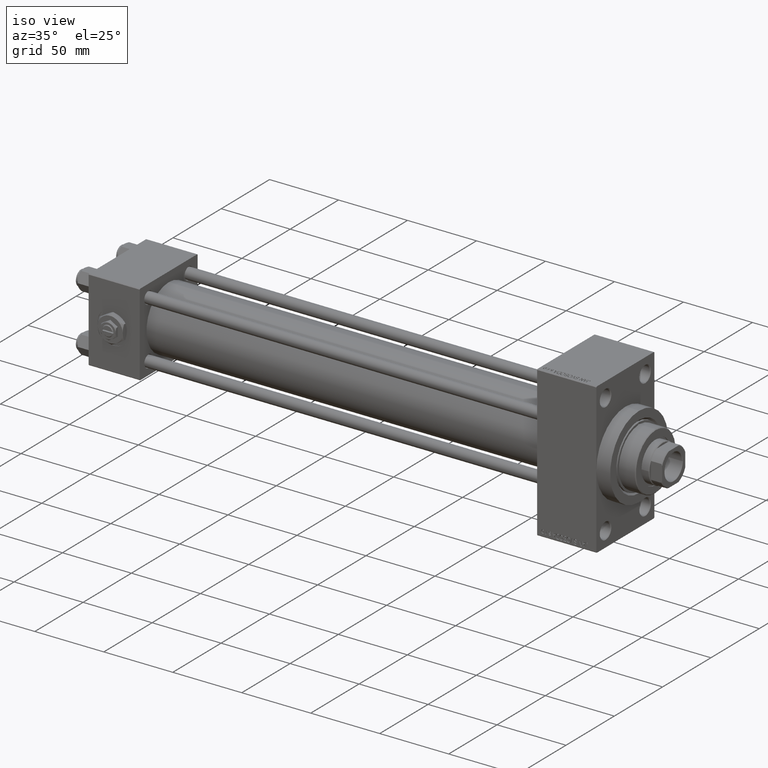
[diagram: clean part render]
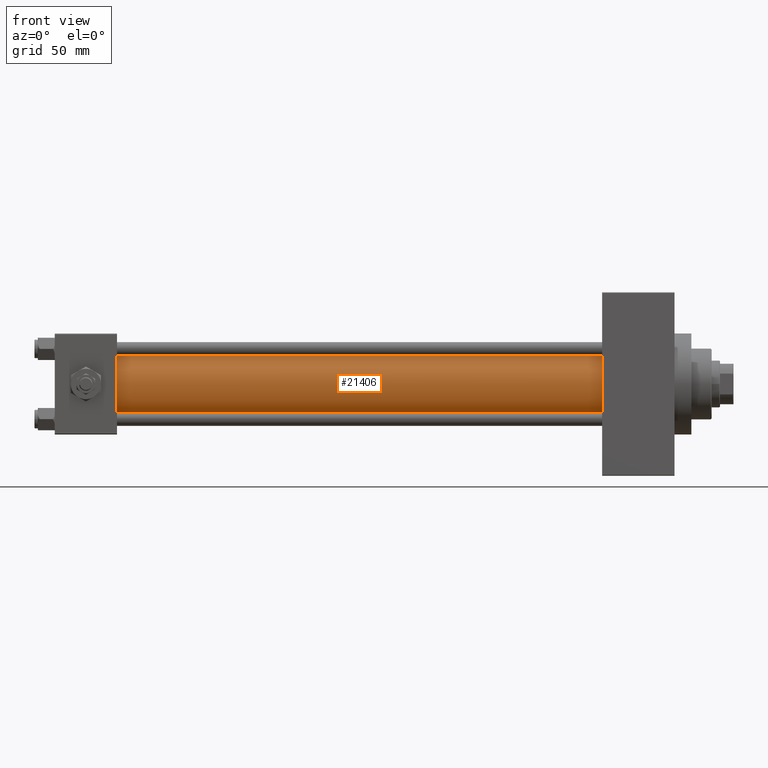
[diagram: tour spotlight — one face highlighted and labeled with its STEP entity id]
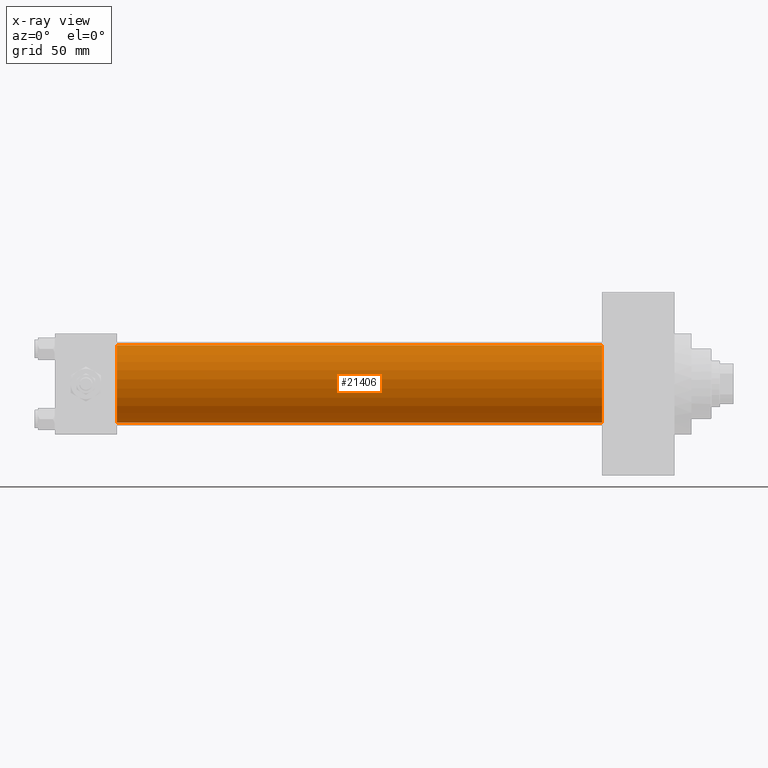
[diagram: x-ray of the same camera — body ghosted, this tour face saturated]
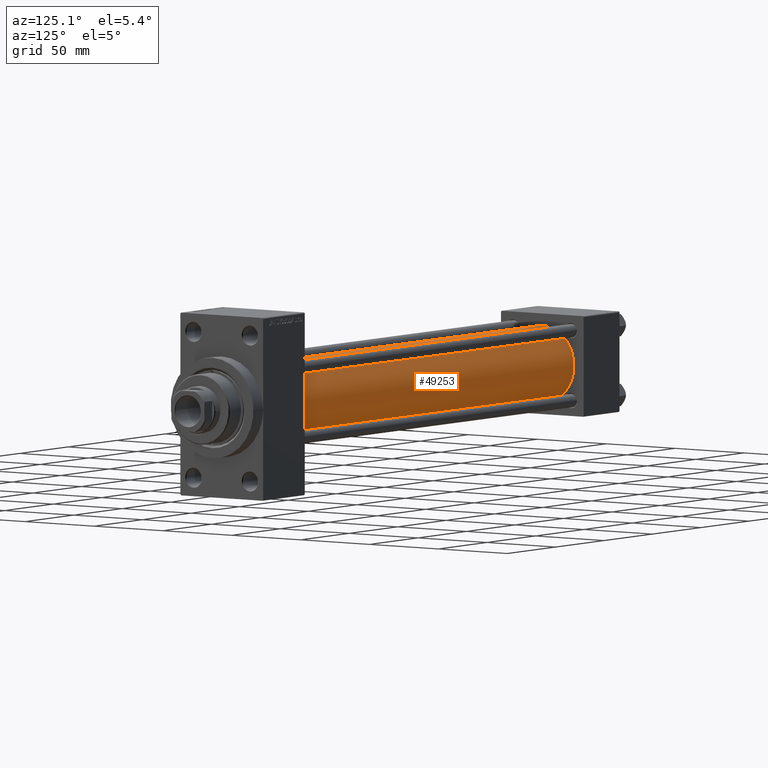
[diagram: tour spotlight — one face highlighted and labeled with its STEP entity id]
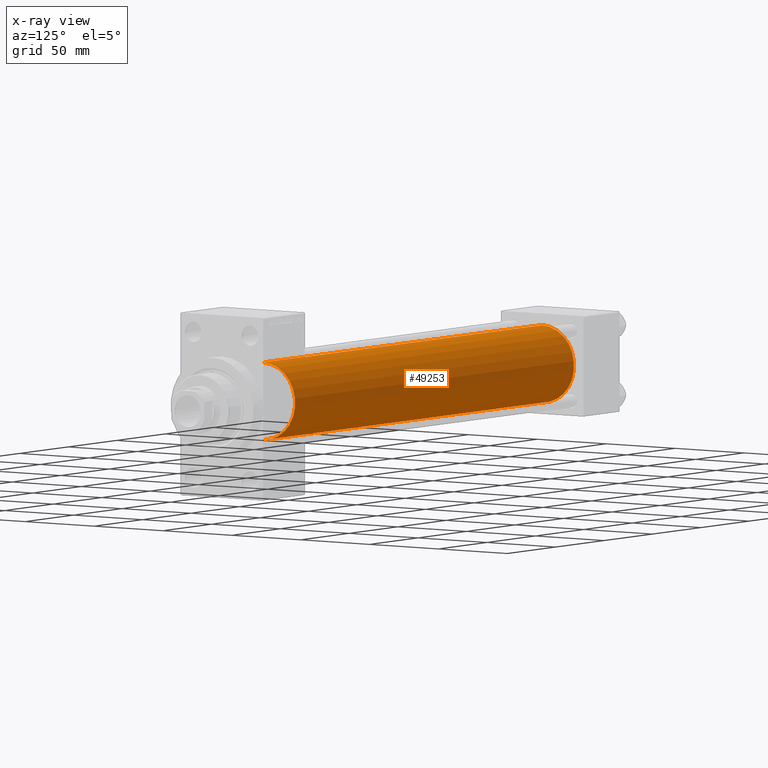
[diagram: x-ray of the same camera — body ghosted, this tour face saturated]
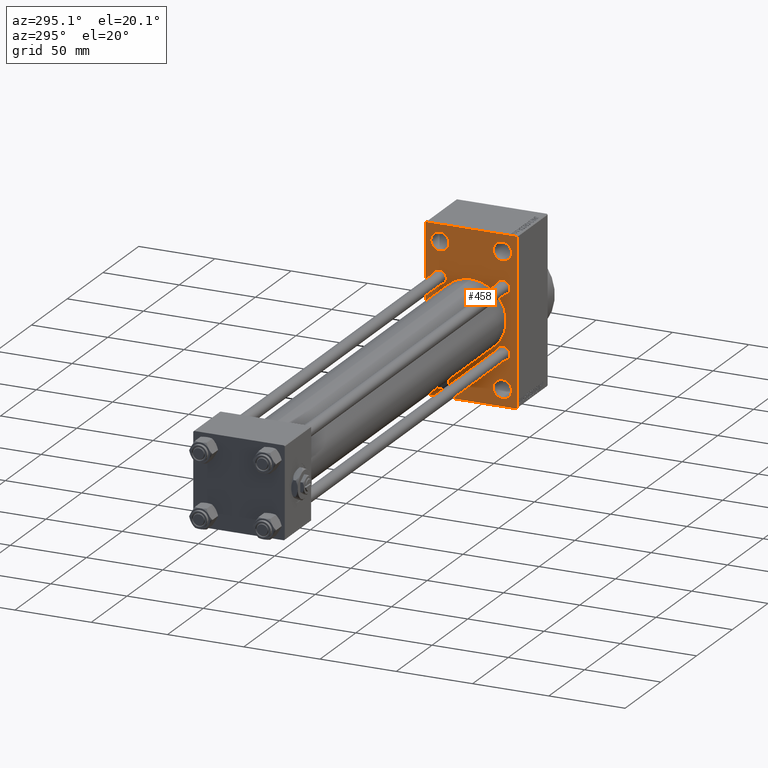
[diagram: tour spotlight — one face highlighted and labeled with its STEP entity id]
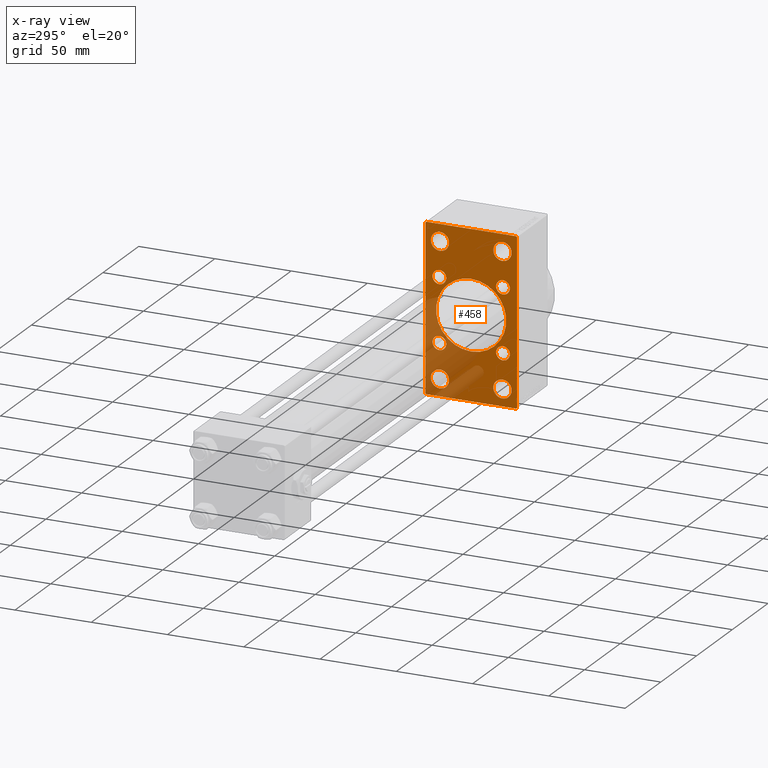
[diagram: x-ray of the same camera — body ghosted, this tour face saturated]
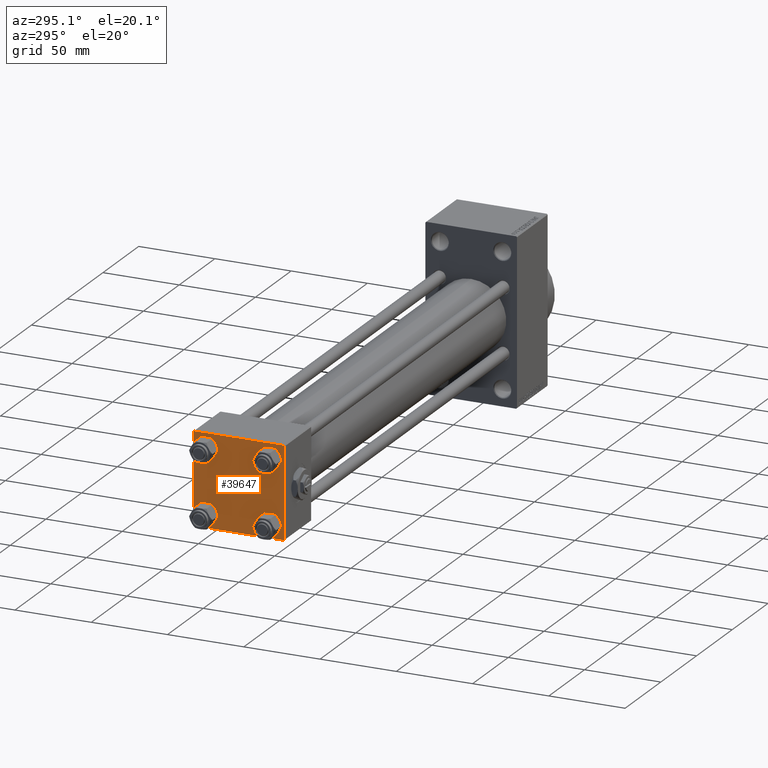
[diagram: tour spotlight — one face highlighted and labeled with its STEP entity id]
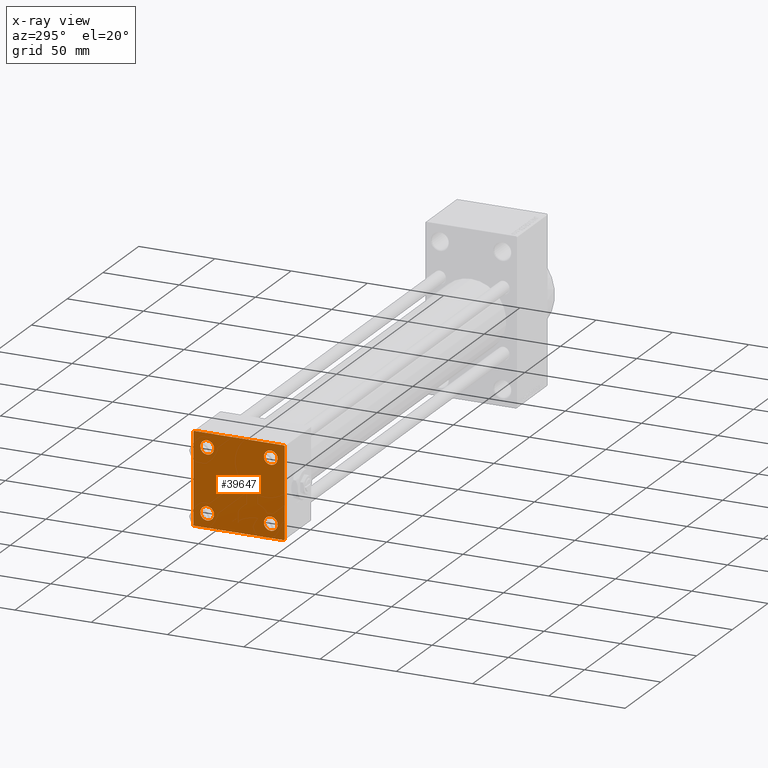
[diagram: x-ray of the same camera — body ghosted, this tour face saturated]
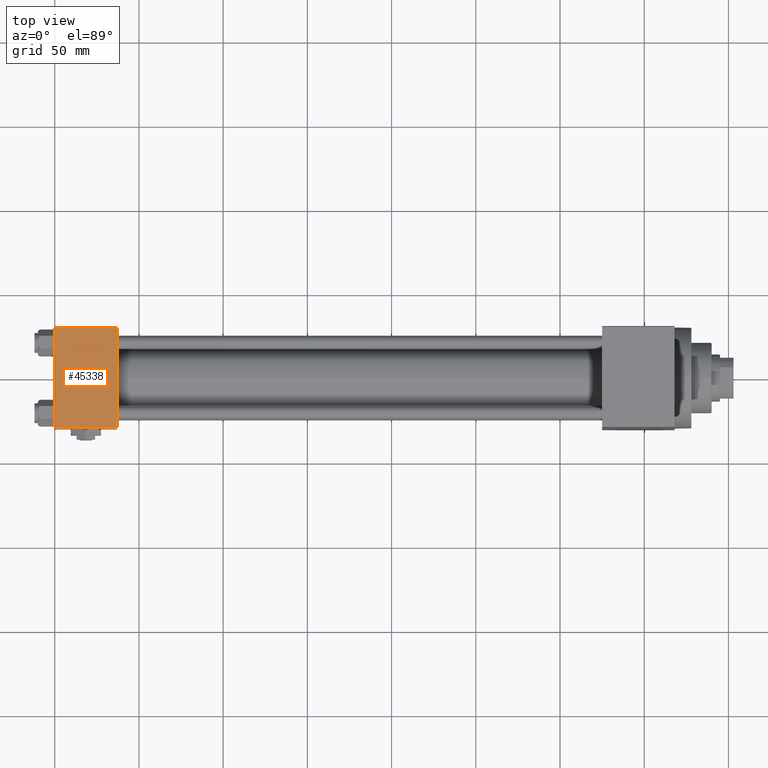
[diagram: tour spotlight — one face highlighted and labeled with its STEP entity id]
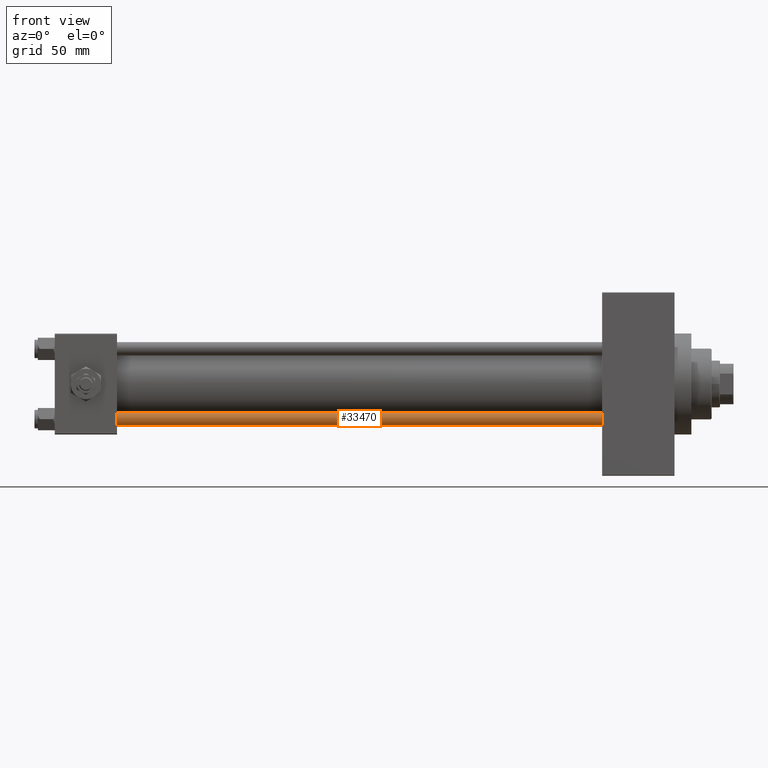
[diagram: tour spotlight — one face highlighted and labeled with its STEP entity id]
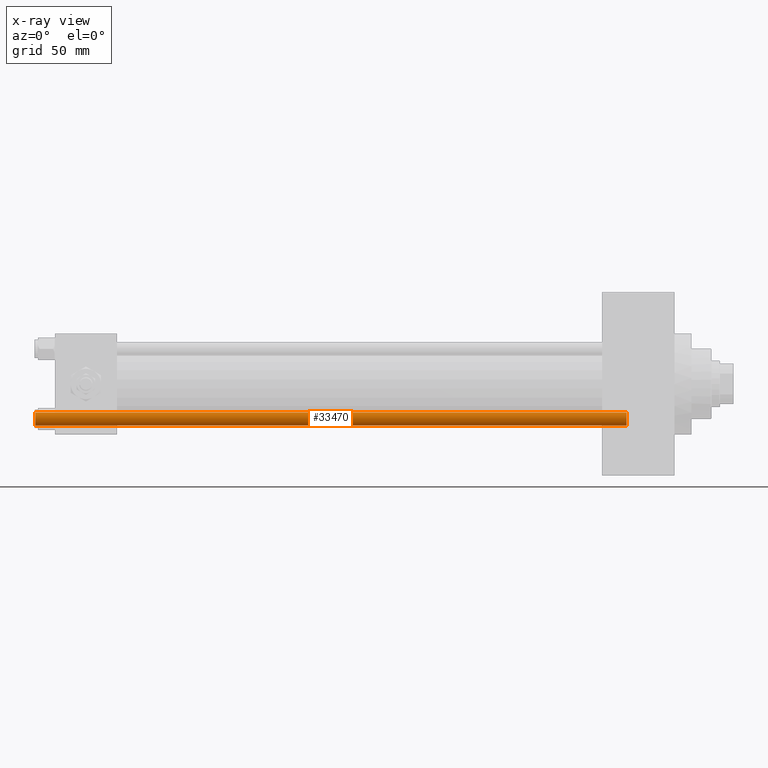
[diagram: x-ray of the same camera — body ghosted, this tour face saturated]
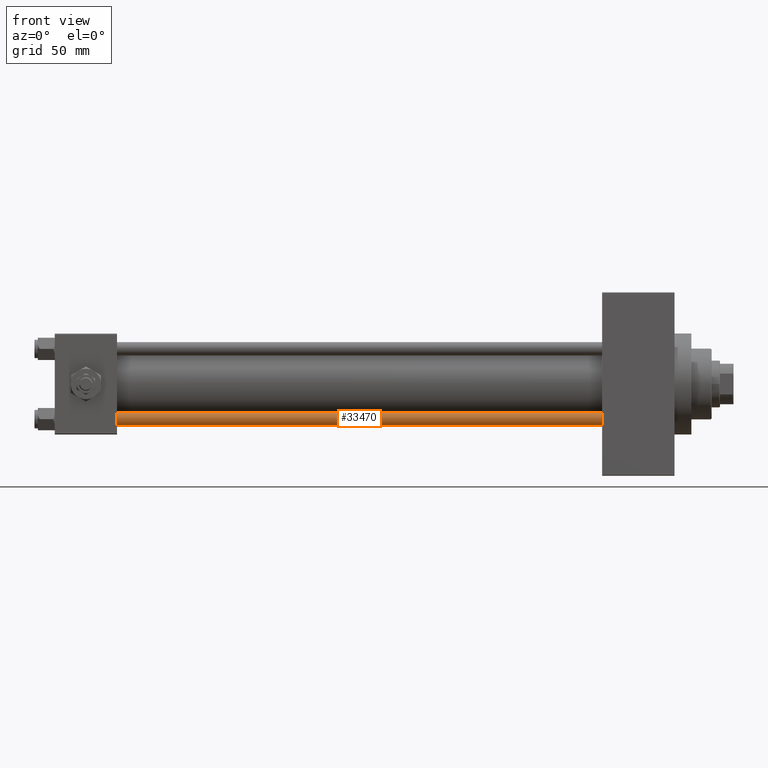
[diagram: tour spotlight — one face highlighted and labeled with its STEP entity id]
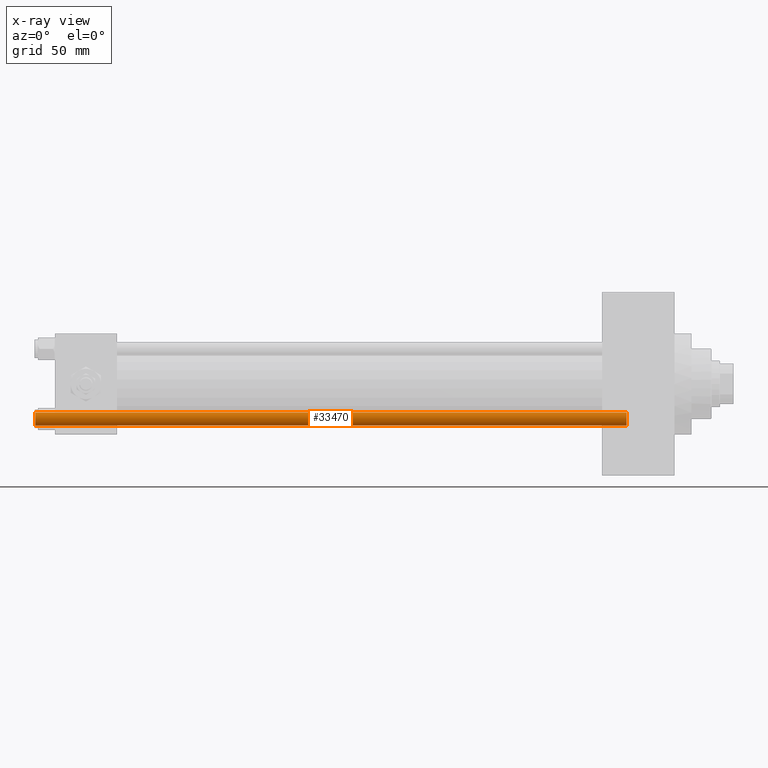
[diagram: x-ray of the same camera — body ghosted, this tour face saturated]
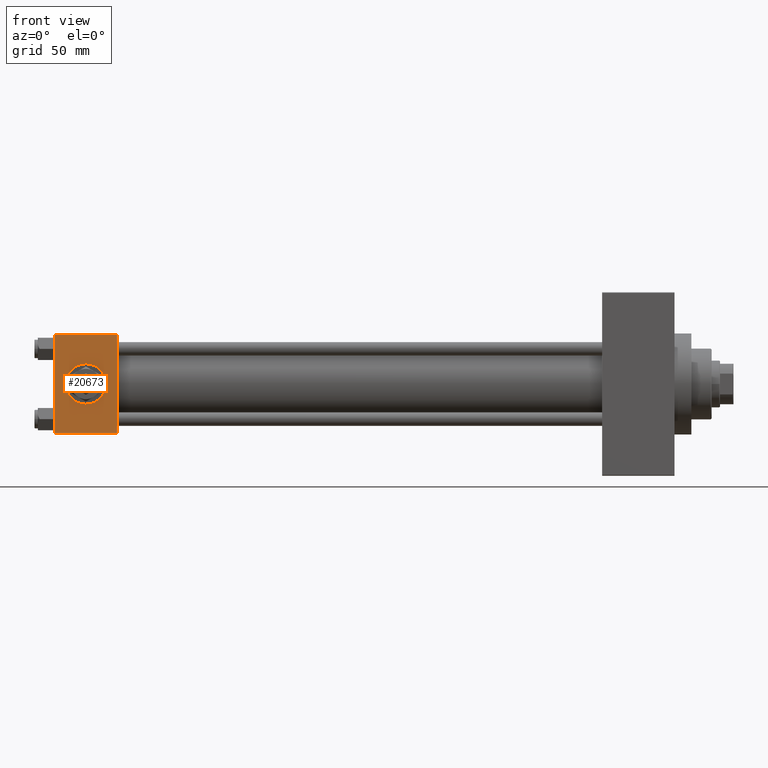
[diagram: tour spotlight — one face highlighted and labeled with its STEP entity id]
A machine part: a face-by-face anatomy tour. The part has 1167 B-rep faces; the first image is the clean iso view, then the 8 largest visible faces are spotlighted one at a time (largest first), each with its STEP entity span.

Face 1 — front view, entity #21406. An x-ray twin of the same camera follows (body ghosted, this face saturated) — the face is partly hidden behind the body. In plain terms, the highlighted cylindrical surface (partial cylindrical patch) has radius 23 mm, axis along (-1, -0, -0).
Definition (entity closure, byte-faithful):
#394 = CARTESIAN_POINT ( 'NONE',  ( 36.99999999999997868, -2.602085213965210642E-15, 23.00000000000000000 ) ) ;
#2114 = CARTESIAN_POINT ( 'NONE',  ( 324.9999999999999432, -2.602085213965210642E-15, 23.00000000000000000 ) ) ;
#2422 = DIRECTION ( 'NONE',  ( 0.000000000000000000, 0.000000000000000000, -1.000000000000000000 ) ) ;
#4711 = VERTEX_POINT ( 'NONE', #32162 ) ;
#6928 = CIRCLE ( 'NONE', #29173, 23.00000000000000000 ) ;
#6993 = EDGE_CURVE ( 'NONE', #32530, #4711, #12199, .T. ) ;
#11099 = DIRECTION ( 'NONE',  ( 0.000000000000000000, 0.000000000000000000, 1.000000000000000000 ) ) ;
#12199 = LINE ( 'NONE', #14960, #46703 ) ;
#12408 = EDGE_LOOP ( 'NONE', ( #31556, #37086, #30551, #24879 ) ) ;
#14421 = CARTESIAN_POINT ( 'NONE',  ( 324.9999999999999432, -2.602085213965210642E-15, 0.000000000000000000 ) ) ;
#14850 = DIRECTION ( 'NONE',  ( 1.000000000000000000, -0.000000000000000000, 0.000000000000000000 ) ) ;
#14960 = CARTESIAN_POINT ( 'NONE',  ( 324.9999999999999432, 2.146024240737016609E-16, -23.00000000000000000 ) ) ;
#15279 = CARTESIAN_POINT ( 'NONE',  ( 324.9999999999999432, -2.602085213965210642E-15, 23.00000000000000000 ) ) ;
#16596 = VERTEX_POINT ( 'NONE', #2114 ) ;
#20736 = EDGE_CURVE ( 'NONE', #16596, #32530, #27774, .T. ) ;
#21406 = ADVANCED_FACE ( 'NONE', ( #21641 ), #40831, .T. ) ;
#21426 = AXIS2_PLACEMENT_3D ( 'NONE', #14421, #37343, #30107 ) ;
#21641 = FACE_OUTER_BOUND ( 'NONE', #12408, .T. ) ;
#22507 = DIRECTION ( 'NONE',  ( -1.000000000000000000, -0.000000000000000000, -0.000000000000000000 ) ) ;
#23834 = AXIS2_PLACEMENT_3D ( 'NONE', #47752, #40022, #2422 ) ;
#24879 = ORIENTED_EDGE ( 'NONE', *, *, #41986, .T. ) ;
#27774 = CIRCLE ( 'NONE', #23834, 23.00000000000000000 ) ;
#29173 = AXIS2_PLACEMENT_3D ( 'NONE', #40771, #14850, #11099 ) ;
#29634 = VECTOR ( 'NONE', #22507, 1000.000000000000000 ) ;
#30107 = DIRECTION ( 'NONE',  ( 0.000000000000000000, 0.000000000000000000, 1.000000000000000000 ) ) ;
#30551 = ORIENTED_EDGE ( 'NONE', *, *, #47464, .T. ) ;
#31556 = ORIENTED_EDGE ( 'NONE', *, *, #6993, .F. ) ;
#32162 = CARTESIAN_POINT ( 'NONE',  ( 36.99999999999997868, 2.146024240737016609E-16, -23.00000000000000000 ) ) ;
#32530 = VERTEX_POINT ( 'NONE', #32934 ) ;
#32934 = CARTESIAN_POINT ( 'NONE',  ( 324.9999999999999432, 2.146024240737016609E-16, -23.00000000000000000 ) ) ;
#33961 = LINE ( 'NONE', #15279, #29634 ) ;
#37086 = ORIENTED_EDGE ( 'NONE', *, *, #20736, .F. ) ;
#37343 = DIRECTION ( 'NONE',  ( -1.000000000000000000, -0.000000000000000000, -0.000000000000000000 ) ) ;
#40022 = DIRECTION ( 'NONE',  ( 1.000000000000000000, 0.000000000000000000, 0.000000000000000000 ) ) ;
#40771 = CARTESIAN_POINT ( 'NONE',  ( 36.99999999999997868, -2.602085213965210642E-15, 0.000000000000000000 ) ) ;
#40831 = CYLINDRICAL_SURFACE ( 'NONE', #21426, 23.00000000000000000 ) ;
#41145 = VERTEX_POINT ( 'NONE', #394 ) ;
#41986 = EDGE_CURVE ( 'NONE', #41145, #4711, #6928, .T. ) ;
#42354 = DIRECTION ( 'NONE',  ( -1.000000000000000000, -0.000000000000000000, -0.000000000000000000 ) ) ;
#46703 = VECTOR ( 'NONE', #42354, 1000.000000000000000 ) ;
#47464 = EDGE_CURVE ( 'NONE', #16596, #41145, #33961, .T. ) ;
#47752 = CARTESIAN_POINT ( 'NONE',  ( 324.9999999999999432, -2.602085213965210642E-15, 0.000000000000000000 ) ) ;

Face 2 — auxiliary view, entity #49253. An x-ray twin of the same camera follows (body ghosted, this face saturated) — the face is partly hidden behind the body. In plain terms, the highlighted cylindrical surface (partial cylindrical patch) has radius 23 mm, axis along (-1, -0, -0).
Definition (entity closure, byte-faithful):
#300 = CYLINDRICAL_SURFACE ( 'NONE', #14589, 23.00000000000000000 ) ;
#394 = CARTESIAN_POINT ( 'NONE',  ( 36.99999999999997868, -2.602085213965210642E-15, 23.00000000000000000 ) ) ;
#1866 = DIRECTION ( 'NONE',  ( 1.000000000000000000, 0.000000000000000000, 0.000000000000000000 ) ) ;
#2114 = CARTESIAN_POINT ( 'NONE',  ( 324.9999999999999432, -2.602085213965210642E-15, 23.00000000000000000 ) ) ;
#3796 = AXIS2_PLACEMENT_3D ( 'NONE', #20022, #38465, #35210 ) ;
#4048 = CIRCLE ( 'NONE', #38941, 23.00000000000000000 ) ;
#4711 = VERTEX_POINT ( 'NONE', #32162 ) ;
#5982 = ORIENTED_EDGE ( 'NONE', *, *, #6993, .T. ) ;
#6792 = DIRECTION ( 'NONE',  ( -1.000000000000000000, -0.000000000000000000, -0.000000000000000000 ) ) ;
#6993 = EDGE_CURVE ( 'NONE', #32530, #4711, #12199, .T. ) ;
#8556 = EDGE_CURVE ( 'NONE', #4711, #41145, #21280, .T. ) ;
#9807 = CARTESIAN_POINT ( 'NONE',  ( 324.9999999999999432, -2.602085213965210642E-15, 0.000000000000000000 ) ) ;
#12199 = LINE ( 'NONE', #14960, #46703 ) ;
#14589 = AXIS2_PLACEMENT_3D ( 'NONE', #44902, #6792, #40918 ) ;
#14960 = CARTESIAN_POINT ( 'NONE',  ( 324.9999999999999432, 2.146024240737016609E-16, -23.00000000000000000 ) ) ;
#15254 = EDGE_LOOP ( 'NONE', ( #41582, #5982, #33764, #46158 ) ) ;
#15279 = CARTESIAN_POINT ( 'NONE',  ( 324.9999999999999432, -2.602085213965210642E-15, 23.00000000000000000 ) ) ;
#16592 = EDGE_CURVE ( 'NONE', #32530, #16596, #4048, .T. ) ;
#16596 = VERTEX_POINT ( 'NONE', #2114 ) ;
#20022 = CARTESIAN_POINT ( 'NONE',  ( 36.99999999999997868, -2.602085213965210642E-15, 0.000000000000000000 ) ) ;
#21280 = CIRCLE ( 'NONE', #3796, 23.00000000000000000 ) ;
#22507 = DIRECTION ( 'NONE',  ( -1.000000000000000000, -0.000000000000000000, -0.000000000000000000 ) ) ;
#28013 = DIRECTION ( 'NONE',  ( 0.000000000000000000, 0.000000000000000000, -1.000000000000000000 ) ) ;
#29634 = VECTOR ( 'NONE', #22507, 1000.000000000000000 ) ;
#30194 = FACE_OUTER_BOUND ( 'NONE', #15254, .T. ) ;
#32162 = CARTESIAN_POINT ( 'NONE',  ( 36.99999999999997868, 2.146024240737016609E-16, -23.00000000000000000 ) ) ;
#32530 = VERTEX_POINT ( 'NONE', #32934 ) ;
#32934 = CARTESIAN_POINT ( 'NONE',  ( 324.9999999999999432, 2.146024240737016609E-16, -23.00000000000000000 ) ) ;
#33764 = ORIENTED_EDGE ( 'NONE', *, *, #8556, .T. ) ;
#33961 = LINE ( 'NONE', #15279, #29634 ) ;
#35210 = DIRECTION ( 'NONE',  ( 0.000000000000000000, 0.000000000000000000, 1.000000000000000000 ) ) ;
#38465 = DIRECTION ( 'NONE',  ( 1.000000000000000000, -0.000000000000000000, 0.000000000000000000 ) ) ;
#38941 = AXIS2_PLACEMENT_3D ( 'NONE', #9807, #1866, #28013 ) ;
#40918 = DIRECTION ( 'NONE',  ( 0.000000000000000000, 0.000000000000000000, 1.000000000000000000 ) ) ;
#41145 = VERTEX_POINT ( 'NONE', #394 ) ;
#41582 = ORIENTED_EDGE ( 'NONE', *, *, #16592, .F. ) ;
#42354 = DIRECTION ( 'NONE',  ( -1.000000000000000000, -0.000000000000000000, -0.000000000000000000 ) ) ;
#44902 = CARTESIAN_POINT ( 'NONE',  ( 324.9999999999999432, -2.602085213965210642E-15, 0.000000000000000000 ) ) ;
#46158 = ORIENTED_EDGE ( 'NONE', *, *, #47464, .F. ) ;
#46703 = VECTOR ( 'NONE', #42354, 1000.000000000000000 ) ;
#47464 = EDGE_CURVE ( 'NONE', #16596, #41145, #33961, .T. ) ;
#49253 = ADVANCED_FACE ( 'NONE', ( #30194 ), #300, .T. ) ;

Face 3 — auxiliary view, entity #458. An x-ray twin of the same camera follows (body ghosted, this face saturated) — the face is partly hidden behind the body. In plain terms, the highlighted planar face has unit normal (-1, 0, 0).
Definition (entity closure, byte-faithful):
#400 = VERTEX_POINT ( 'NONE', #28934 ) ;
#458 = ADVANCED_FACE ( 'NONE', ( #40406, #33172, #2549, #10747, #21457, #2791, #48366, #17729, #41146, #29185 ), #7020, .T. ) ;
#579 = CIRCLE ( 'NONE', #42717, 4.500000000000007105 ) ;
#907 = VERTEX_POINT ( 'NONE', #17307 ) ;
#1000 = CARTESIAN_POINT ( 'NONE',  ( 324.9999999999999432, 20.50000000000000000, -43.50000000000000000 ) ) ;
#1252 = DIRECTION ( 'NONE',  ( -0.000000000000000000, 0.7071067811865058284, 0.7071067811865892061 ) ) ;
#1866 = DIRECTION ( 'NONE',  ( 1.000000000000000000, 0.000000000000000000, 0.000000000000000000 ) ) ;
#2114 = CARTESIAN_POINT ( 'NONE',  ( 324.9999999999999432, -2.602085213965210642E-15, 23.00000000000000000 ) ) ;
#2422 = DIRECTION ( 'NONE',  ( 0.000000000000000000, 0.000000000000000000, -1.000000000000000000 ) ) ;
#2536 = VERTEX_POINT ( 'NONE', #3401 ) ;
#2549 = FACE_BOUND ( 'NONE', #40553, .T. ) ;
#2672 = DIRECTION ( 'NONE',  ( 0.000000000000000000, 0.000000000000000000, 1.000000000000000000 ) ) ;
#2738 = EDGE_CURVE ( 'NONE', #22659, #20424, #9154, .T. ) ;
#2769 = CIRCLE ( 'NONE', #36172, 6.000000000000060396 ) ;
#2791 = FACE_BOUND ( 'NONE', #5594, .T. ) ;
#2939 = EDGE_CURVE ( 'NONE', #3697, #44130, #37898, .T. ) ;
#2980 = LINE ( 'NONE', #18162, #5610 ) ;
#3401 = CARTESIAN_POINT ( 'NONE',  ( 324.9999999999999432, 29.99999999999999645, -54.00000000000004974 ) ) ;
#3681 = DIRECTION ( 'NONE',  ( 1.000000000000000000, -0.000000000000000000, 0.000000000000000000 ) ) ;
#3697 = VERTEX_POINT ( 'NONE', #33444 ) ;
#3732 = ORIENTED_EDGE ( 'NONE', *, *, #33826, .T. ) ;
#4028 = CARTESIAN_POINT ( 'NONE',  ( 324.9999999999999432, -20.84999999999999076, 16.34999999999999787 ) ) ;
#4048 = CIRCLE ( 'NONE', #38941, 23.00000000000000000 ) ;
#4255 = DIRECTION ( 'NONE',  ( 1.000000000000000000, -0.000000000000000000, 0.000000000000000000 ) ) ;
#4831 = EDGE_CURVE ( 'NONE', #19403, #37040, #45828, .T. ) ;
#5504 = CARTESIAN_POINT ( 'NONE',  ( 324.9999999999999432, 20.84999999999999787, -20.85000000000000142 ) ) ;
#5543 = CIRCLE ( 'NONE', #8735, 6.000000000000060396 ) ;
#5558 = LINE ( 'NONE', #9281, #6505 ) ;
#5594 = EDGE_LOOP ( 'NONE', ( #10369, #48827 ) ) ;
#5610 = VECTOR ( 'NONE', #36849, 1000.000000000000000 ) ;
#5830 = AXIS2_PLACEMENT_3D ( 'NONE', #13863, #9392, #2672 ) ;
#6055 = DIRECTION ( 'NONE',  ( 0.000000000000000000, 0.000000000000000000, 1.000000000000000000 ) ) ;
#6067 = CARTESIAN_POINT ( 'NONE',  ( 324.9999999999999432, -29.49999999999994671, 54.50000000000000000 ) ) ;
#6350 = EDGE_CURVE ( 'NONE', #25343, #19961, #6934, .T. ) ;
#6360 = ORIENTED_EDGE ( 'NONE', *, *, #28825, .T. ) ;
#6505 = VECTOR ( 'NONE', #21463, 1000.000000000000000 ) ;
#6547 = DIRECTION ( 'NONE',  ( 1.000000000000000000, -0.000000000000000000, 0.000000000000000000 ) ) ;
#6727 = EDGE_CURVE ( 'NONE', #19094, #16494, #579, .T. ) ;
#6934 = CIRCLE ( 'NONE', #33164, 6.000000000000060396 ) ;
#7020 = PLANE ( 'NONE',  #29900 ) ;
#7230 = ORIENTED_EDGE ( 'NONE', *, *, #27770, .F. ) ;
#7398 = DIRECTION ( 'NONE',  ( 0.000000000000000000, 0.7071067811865081598, -0.7071067811865868746 ) ) ;
#7629 = ORIENTED_EDGE ( 'NONE', *, *, #2738, .T. ) ;
#8120 = CARTESIAN_POINT ( 'NONE',  ( 324.9999999999999432, -20.50000000000000000, 49.50000000000005684 ) ) ;
#8366 = ORIENTED_EDGE ( 'NONE', *, *, #18331, .T. ) ;
#8509 = CARTESIAN_POINT ( 'NONE',  ( 324.9999999999999432, 20.84999999999999787, -20.85000000000000142 ) ) ;
#8735 = AXIS2_PLACEMENT_3D ( 'NONE', #1000, #38354, #16182 ) ;
#8841 = CARTESIAN_POINT ( 'NONE',  ( 324.9999999999999432, -20.84999999999999076, 25.35000000000001208 ) ) ;
#9154 = CIRCLE ( 'NONE', #18024, 4.500000000000007105 ) ;
#9281 = CARTESIAN_POINT ( 'NONE',  ( 324.9999999999999432, 29.99999999999999645, 54.49999999999999289 ) ) ;
#9392 = DIRECTION ( 'NONE',  ( 1.000000000000000000, -0.000000000000000000, 0.000000000000000000 ) ) ;
#9619 = VERTEX_POINT ( 'NONE', #6067 ) ;
#9807 = CARTESIAN_POINT ( 'NONE',  ( 324.9999999999999432, -2.602085213965210642E-15, 0.000000000000000000 ) ) ;
#10021 = CARTESIAN_POINT ( 'NONE',  ( 324.9999999999999432, -20.84999999999999076, -20.85000000000000497 ) ) ;
#10327 = VECTOR ( 'NONE', #7398, 1000.000000000000000 ) ;
#10369 = ORIENTED_EDGE ( 'NONE', *, *, #48338, .T. ) ;
#10747 = FACE_BOUND ( 'NONE', #16040, .T. ) ;
#11347 = VERTEX_POINT ( 'NONE', #15921 ) ;
#11364 = LINE ( 'NONE', #26556, #10327 ) ;
#11692 = CARTESIAN_POINT ( 'NONE',  ( 324.9999999999999432, -20.84999999999999076, 20.85000000000000497 ) ) ;
#11729 = CARTESIAN_POINT ( 'NONE',  ( 324.9999999999999432, 20.50000000000000000, 49.50000000000005684 ) ) ;
#12095 = ORIENTED_EDGE ( 'NONE', *, *, #28037, .T. ) ;
#12185 = DIRECTION ( 'NONE',  ( 0.000000000000000000, 0.000000000000000000, 1.000000000000000000 ) ) ;
#13090 = EDGE_CURVE ( 'NONE', #19961, #25343, #5543, .T. ) ;
#13197 = AXIS2_PLACEMENT_3D ( 'NONE', #5504, #28888, #20922 ) ;
#13608 = EDGE_CURVE ( 'NONE', #18459, #27652, #15889, .T. ) ;
#13706 = CIRCLE ( 'NONE', #20890, 4.500000000000007105 ) ;
#13863 = CARTESIAN_POINT ( 'NONE',  ( 324.9999999999999432, 20.50000000000000000, 43.50000000000000000 ) ) ;
#13913 = EDGE_LOOP ( 'NONE', ( #25158, #42002 ) ) ;
#14710 = EDGE_CURVE ( 'NONE', #31442, #14815, #11364, .T. ) ;
#14775 = AXIS2_PLACEMENT_3D ( 'NONE', #34190, #15259, #23480 ) ;
#14815 = VERTEX_POINT ( 'NONE', #42515 ) ;
#15259 = DIRECTION ( 'NONE',  ( 1.000000000000000000, -0.000000000000000000, 0.000000000000000000 ) ) ;
#15308 = LINE ( 'NONE', #18793, #33589 ) ;
#15731 = ORIENTED_EDGE ( 'NONE', *, *, #6350, .T. ) ;
#15889 = CIRCLE ( 'NONE', #43723, 6.000000000000060396 ) ;
#15921 = CARTESIAN_POINT ( 'NONE',  ( 324.9999999999999432, 20.50000000000000000, 37.49999999999993605 ) ) ;
#16040 = EDGE_LOOP ( 'NONE', ( #35254, #3732 ) ) ;
#16182 = DIRECTION ( 'NONE',  ( 0.000000000000000000, 0.000000000000000000, 1.000000000000000000 ) ) ;
#16187 = ORIENTED_EDGE ( 'NONE', *, *, #49196, .T. ) ;
#16494 = VERTEX_POINT ( 'NONE', #8841 ) ;
#16592 = EDGE_CURVE ( 'NONE', #32530, #16596, #4048, .T. ) ;
#16596 = VERTEX_POINT ( 'NONE', #2114 ) ;
#17307 = CARTESIAN_POINT ( 'NONE',  ( 324.9999999999999432, 29.49999999999999645, -54.49999999999999289 ) ) ;
#17729 = FACE_BOUND ( 'NONE', #29254, .T. ) ;
#17992 = DIRECTION ( 'NONE',  ( 0.000000000000000000, 0.000000000000000000, 1.000000000000000000 ) ) ;
#17996 = DIRECTION ( 'NONE',  ( 1.000000000000000000, -0.000000000000000000, 0.000000000000000000 ) ) ;
#18024 = AXIS2_PLACEMENT_3D ( 'NONE', #10021, #17996, #21473 ) ;
#18162 = CARTESIAN_POINT ( 'NONE',  ( 324.9999999999999432, 29.99999999999999645, 54.49999999999999289 ) ) ;
#18331 = EDGE_CURVE ( 'NONE', #14815, #2536, #2980, .T. ) ;
#18459 = VERTEX_POINT ( 'NONE', #23626 ) ;
#18460 = DIRECTION ( 'NONE',  ( -1.000000000000000000, 0.000000000000000000, -0.000000000000000000 ) ) ;
#18793 = CARTESIAN_POINT ( 'NONE',  ( 324.9999999999999432, -42.00000000000051159, -41.99999999999905498 ) ) ;
#19094 = VERTEX_POINT ( 'NONE', #4028 ) ;
#19403 = VERTEX_POINT ( 'NONE', #28855 ) ;
#19961 = VERTEX_POINT ( 'NONE', #28921 ) ;
#20245 = EDGE_CURVE ( 'NONE', #36750, #30533, #42099, .T. ) ;
#20424 = VERTEX_POINT ( 'NONE', #20896 ) ;
#20608 = CARTESIAN_POINT ( 'NONE',  ( 324.9999999999999432, -30.00000000000000000, 53.99999999999988631 ) ) ;
#20736 = EDGE_CURVE ( 'NONE', #16596, #32530, #27774, .T. ) ;
#20848 = VECTOR ( 'NONE', #34937, 1000.000000000000000 ) ;
#20890 = AXIS2_PLACEMENT_3D ( 'NONE', #11692, #38858, #12185 ) ;
#20896 = CARTESIAN_POINT ( 'NONE',  ( 324.9999999999999432, -20.84999999999999076, -25.35000000000001208 ) ) ;
#20922 = DIRECTION ( 'NONE',  ( 0.000000000000000000, 0.000000000000000000, 1.000000000000000000 ) ) ;
#21457 = FACE_BOUND ( 'NONE', #25232, .T. ) ;
#21463 = DIRECTION ( 'NONE',  ( 0.000000000000000000, -1.000000000000000000, 1.156482317317871478E-16 ) ) ;
#21473 = DIRECTION ( 'NONE',  ( 0.000000000000000000, 0.000000000000000000, 1.000000000000000000 ) ) ;
#21507 = EDGE_LOOP ( 'NONE', ( #23494, #12095, #7230, #24952, #46225, #22160, #8366, #26298 ) ) ;
#21973 = CARTESIAN_POINT ( 'NONE',  ( 324.9999999999999432, -20.50000000000000000, -49.50000000000005684 ) ) ;
#22160 = ORIENTED_EDGE ( 'NONE', *, *, #14710, .T. ) ;
#22422 = CARTESIAN_POINT ( 'NONE',  ( 324.9999999999999432, 20.84999999999999787, 20.85000000000000142 ) ) ;
#22555 = ORIENTED_EDGE ( 'NONE', *, *, #13090, .T. ) ;
#22611 = ORIENTED_EDGE ( 'NONE', *, *, #6727, .T. ) ;
#22659 = VERTEX_POINT ( 'NONE', #49191 ) ;
#23313 = AXIS2_PLACEMENT_3D ( 'NONE', #31114, #41158, #17992 ) ;
#23480 = DIRECTION ( 'NONE',  ( 0.000000000000000000, 0.000000000000000000, 1.000000000000000000 ) ) ;
#23494 = ORIENTED_EDGE ( 'NONE', *, *, #43125, .T. ) ;
#23626 = CARTESIAN_POINT ( 'NONE',  ( 324.9999999999999432, -20.50000000000000000, 37.49999999999993605 ) ) ;
#23834 = AXIS2_PLACEMENT_3D ( 'NONE', #47752, #40022, #2422 ) ;
#24345 = AXIS2_PLACEMENT_3D ( 'NONE', #22422, #37626, #25175 ) ;
#24952 = ORIENTED_EDGE ( 'NONE', *, *, #39849, .T. ) ;
#25158 = ORIENTED_EDGE ( 'NONE', *, *, #43301, .T. ) ;
#25175 = DIRECTION ( 'NONE',  ( 0.000000000000000000, 0.000000000000000000, 1.000000000000000000 ) ) ;
#25232 = EDGE_LOOP ( 'NONE', ( #6360, #22611 ) ) ;
#25343 = VERTEX_POINT ( 'NONE', #39245 ) ;
#26198 = LINE ( 'NONE', #40911, #43544 ) ;
#26298 = ORIENTED_EDGE ( 'NONE', *, *, #41722, .T. ) ;
#26465 = CARTESIAN_POINT ( 'NONE',  ( 324.9999999999999432, -20.84999999999999076, 20.85000000000000497 ) ) ;
#26509 = DIRECTION ( 'NONE',  ( 0.000000000000000000, -0.7071067811865352493, 0.7071067811865597852 ) ) ;
#26556 = CARTESIAN_POINT ( 'NONE',  ( 324.9999999999999432, 42.00000000000166267, 41.99999999999699440 ) ) ;
#26591 = EDGE_LOOP ( 'NONE', ( #44675, #28965 ) ) ;
#26769 = EDGE_CURVE ( 'NONE', #31442, #9619, #5558, .T. ) ;
#26778 = CIRCLE ( 'NONE', #33934, 4.500000000000007105 ) ;
#27536 = VERTEX_POINT ( 'NONE', #38023 ) ;
#27652 = VERTEX_POINT ( 'NONE', #8120 ) ;
#27770 = EDGE_CURVE ( 'NONE', #45156, #400, #38193, .T. ) ;
#27774 = CIRCLE ( 'NONE', #23834, 23.00000000000000000 ) ;
#28013 = DIRECTION ( 'NONE',  ( 0.000000000000000000, 0.000000000000000000, -1.000000000000000000 ) ) ;
#28037 = EDGE_CURVE ( 'NONE', #27536, #400, #15308, .T. ) ;
#28097 = ORIENTED_EDGE ( 'NONE', *, *, #20736, .T. ) ;
#28825 = EDGE_CURVE ( 'NONE', #16494, #19094, #13706, .T. ) ;
#28855 = CARTESIAN_POINT ( 'NONE',  ( 324.9999999999999432, 20.84999999999999787, 16.34999999999999432 ) ) ;
#28888 = DIRECTION ( 'NONE',  ( 1.000000000000000000, -0.000000000000000000, 0.000000000000000000 ) ) ;
#28914 = CIRCLE ( 'NONE', #36892, 6.000000000000060396 ) ;
#28921 = CARTESIAN_POINT ( 'NONE',  ( 324.9999999999999432, 20.50000000000000000, -49.50000000000005684 ) ) ;
#28934 = CARTESIAN_POINT ( 'NONE',  ( 324.9999999999999432, -30.00000000000000000, -53.99999999999998579 ) ) ;
#28965 = ORIENTED_EDGE ( 'NONE', *, *, #20245, .T. ) ;
#29185 = FACE_OUTER_BOUND ( 'NONE', #21507, .T. ) ;
#29254 = EDGE_LOOP ( 'NONE', ( #7629, #35652 ) ) ;
#29900 = AXIS2_PLACEMENT_3D ( 'NONE', #44387, #18460, #32923 ) ;
#30533 = VERTEX_POINT ( 'NONE', #45355 ) ;
#30963 = CARTESIAN_POINT ( 'NONE',  ( 324.9999999999999432, -30.00000000000000000, 54.50000000000000000 ) ) ;
#31114 = CARTESIAN_POINT ( 'NONE',  ( 324.9999999999999432, 20.84999999999999787, 20.85000000000000142 ) ) ;
#31442 = VERTEX_POINT ( 'NONE', #31532 ) ;
#31532 = CARTESIAN_POINT ( 'NONE',  ( 324.9999999999999432, 29.50000000000004974, 54.49999999999999289 ) ) ;
#32530 = VERTEX_POINT ( 'NONE', #32934 ) ;
#32923 = DIRECTION ( 'NONE',  ( -0.000000000000000000, 0.000000000000000000, 1.000000000000000000 ) ) ;
#32934 = CARTESIAN_POINT ( 'NONE',  ( 324.9999999999999432, 2.146024240737016609E-16, -23.00000000000000000 ) ) ;
#33164 = AXIS2_PLACEMENT_3D ( 'NONE', #39773, #47742, #39534 ) ;
#33172 = FACE_BOUND ( 'NONE', #26591, .T. ) ;
#33444 = CARTESIAN_POINT ( 'NONE',  ( 324.9999999999999432, 20.84999999999999787, -25.35000000000000853 ) ) ;
#33589 = VECTOR ( 'NONE', #26509, 1000.000000000000000 ) ;
#33826 = EDGE_CURVE ( 'NONE', #11347, #43150, #47216, .T. ) ;
#33934 = AXIS2_PLACEMENT_3D ( 'NONE', #41533, #3681, #44542 ) ;
#34190 = CARTESIAN_POINT ( 'NONE',  ( 324.9999999999999432, 20.50000000000000000, 43.50000000000000000 ) ) ;
#34687 = VECTOR ( 'NONE', #1252, 1000.000000000000000 ) ;
#34937 = DIRECTION ( 'NONE',  ( 0.000000000000000000, 0.000000000000000000, -1.000000000000000000 ) ) ;
#35254 = ORIENTED_EDGE ( 'NONE', *, *, #38993, .T. ) ;
#35349 = CARTESIAN_POINT ( 'NONE',  ( 324.9999999999999432, -42.00000000000171951, 41.99999999999676703 ) ) ;
#35652 = ORIENTED_EDGE ( 'NONE', *, *, #44641, .T. ) ;
#35931 = DIRECTION ( 'NONE',  ( 1.000000000000000000, -0.000000000000000000, 0.000000000000000000 ) ) ;
#36116 = DIRECTION ( 'NONE',  ( 1.000000000000000000, -0.000000000000000000, 0.000000000000000000 ) ) ;
#36172 = AXIS2_PLACEMENT_3D ( 'NONE', #43425, #39691, #6055 ) ;
#36590 = EDGE_CURVE ( 'NONE', #30533, #36750, #2769, .T. ) ;
#36750 = VERTEX_POINT ( 'NONE', #21973 ) ;
#36844 = LINE ( 'NONE', #43587, #44327 ) ;
#36849 = DIRECTION ( 'NONE',  ( 0.000000000000000000, 0.000000000000000000, -1.000000000000000000 ) ) ;
#36892 = AXIS2_PLACEMENT_3D ( 'NONE', #36933, #6547, #44409 ) ;
#36933 = CARTESIAN_POINT ( 'NONE',  ( 324.9999999999999432, -20.50000000000000000, 43.50000000000000000 ) ) ;
#37040 = VERTEX_POINT ( 'NONE', #40366 ) ;
#37626 = DIRECTION ( 'NONE',  ( 1.000000000000000000, -0.000000000000000000, 0.000000000000000000 ) ) ;
#37898 = CIRCLE ( 'NONE', #41878, 4.500000000000007105 ) ;
#38023 = CARTESIAN_POINT ( 'NONE',  ( 324.9999999999999432, -29.50000000000000355, -54.50000000000000000 ) ) ;
#38193 = LINE ( 'NONE', #30963, #20848 ) ;
#38354 = DIRECTION ( 'NONE',  ( 1.000000000000000000, -0.000000000000000000, 0.000000000000000000 ) ) ;
#38623 = CARTESIAN_POINT ( 'NONE',  ( 324.9999999999999432, -20.50000000000000000, -43.50000000000000000 ) ) ;
#38858 = DIRECTION ( 'NONE',  ( 1.000000000000000000, -0.000000000000000000, 0.000000000000000000 ) ) ;
#38941 = AXIS2_PLACEMENT_3D ( 'NONE', #9807, #1866, #28013 ) ;
#38993 = EDGE_CURVE ( 'NONE', #43150, #11347, #47387, .T. ) ;
#39112 = LINE ( 'NONE', #35349, #34687 ) ;
#39145 = DIRECTION ( 'NONE',  ( 0.000000000000000000, 0.000000000000000000, 1.000000000000000000 ) ) ;
#39245 = CARTESIAN_POINT ( 'NONE',  ( 324.9999999999999432, 20.50000000000000000, -37.49999999999993605 ) ) ;
#39534 = DIRECTION ( 'NONE',  ( 0.000000000000000000, 0.000000000000000000, 1.000000000000000000 ) ) ;
#39563 = CIRCLE ( 'NONE', #13197, 4.500000000000007105 ) ;
#39691 = DIRECTION ( 'NONE',  ( 1.000000000000000000, -0.000000000000000000, 0.000000000000000000 ) ) ;
#39773 = CARTESIAN_POINT ( 'NONE',  ( 324.9999999999999432, 20.50000000000000000, -43.50000000000000000 ) ) ;
#39845 = DIRECTION ( 'NONE',  ( -0.000000000000000000, -0.7071067811865868746, -0.7071067811865081598 ) ) ;
#39849 = EDGE_CURVE ( 'NONE', #45156, #9619, #39112, .T. ) ;
#40022 = DIRECTION ( 'NONE',  ( 1.000000000000000000, 0.000000000000000000, 0.000000000000000000 ) ) ;
#40366 = CARTESIAN_POINT ( 'NONE',  ( 324.9999999999999432, 20.84999999999999787, 25.35000000000000853 ) ) ;
#40406 = FACE_BOUND ( 'NONE', #47276, .T. ) ;
#40553 = EDGE_LOOP ( 'NONE', ( #15731, #22555 ) ) ;
#40839 = CIRCLE ( 'NONE', #23313, 4.500000000000007105 ) ;
#40911 = CARTESIAN_POINT ( 'NONE',  ( 324.9999999999999432, 29.99999999999999645, -54.49999999999999289 ) ) ;
#41146 = FACE_BOUND ( 'NONE', #45835, .T. ) ;
#41158 = DIRECTION ( 'NONE',  ( 1.000000000000000000, -0.000000000000000000, 0.000000000000000000 ) ) ;
#41400 = DIRECTION ( 'NONE',  ( 0.000000000000000000, -1.000000000000000000, -1.156482317317871478E-16 ) ) ;
#41533 = CARTESIAN_POINT ( 'NONE',  ( 324.9999999999999432, -20.84999999999999076, -20.85000000000000497 ) ) ;
#41613 = DIRECTION ( 'NONE',  ( 0.000000000000000000, 0.000000000000000000, 1.000000000000000000 ) ) ;
#41671 = DIRECTION ( 'NONE',  ( 1.000000000000000000, -0.000000000000000000, 0.000000000000000000 ) ) ;
#41722 = EDGE_CURVE ( 'NONE', #2536, #907, #36844, .T. ) ;
#41878 = AXIS2_PLACEMENT_3D ( 'NONE', #8509, #36116, #39145 ) ;
#42002 = ORIENTED_EDGE ( 'NONE', *, *, #2939, .T. ) ;
#42099 = CIRCLE ( 'NONE', #48429, 6.000000000000060396 ) ;
#42515 = CARTESIAN_POINT ( 'NONE',  ( 324.9999999999999432, 29.99999999999999645, 53.99999999999999289 ) ) ;
#42717 = AXIS2_PLACEMENT_3D ( 'NONE', #26465, #41671, #46162 ) ;
#43125 = EDGE_CURVE ( 'NONE', #907, #27536, #26198, .T. ) ;
#43150 = VERTEX_POINT ( 'NONE', #11729 ) ;
#43301 = EDGE_CURVE ( 'NONE', #44130, #3697, #39563, .T. ) ;
#43425 = CARTESIAN_POINT ( 'NONE',  ( 324.9999999999999432, -20.50000000000000000, -43.50000000000000000 ) ) ;
#43544 = VECTOR ( 'NONE', #41400, 1000.000000000000000 ) ;
#43587 = CARTESIAN_POINT ( 'NONE',  ( 324.9999999999999432, 41.99999999999835154, -42.00000000000301981 ) ) ;
#43723 = AXIS2_PLACEMENT_3D ( 'NONE', #43911, #35931, #47405 ) ;
#43911 = CARTESIAN_POINT ( 'NONE',  ( 324.9999999999999432, -20.50000000000000000, 43.50000000000000000 ) ) ;
#44130 = VERTEX_POINT ( 'NONE', #46138 ) ;
#44327 = VECTOR ( 'NONE', #39845, 1000.000000000000000 ) ;
#44387 = CARTESIAN_POINT ( 'NONE',  ( 324.9999999999999432, 0.000000000000000000, 0.000000000000000000 ) ) ;
#44409 = DIRECTION ( 'NONE',  ( 0.000000000000000000, 0.000000000000000000, 1.000000000000000000 ) ) ;
#44542 = DIRECTION ( 'NONE',  ( 0.000000000000000000, 0.000000000000000000, 1.000000000000000000 ) ) ;
#44641 = EDGE_CURVE ( 'NONE', #20424, #22659, #26778, .T. ) ;
#44675 = ORIENTED_EDGE ( 'NONE', *, *, #36590, .T. ) ;
#45156 = VERTEX_POINT ( 'NONE', #20608 ) ;
#45355 = CARTESIAN_POINT ( 'NONE',  ( 324.9999999999999432, -20.50000000000000000, -37.49999999999993605 ) ) ;
#45442 = ORIENTED_EDGE ( 'NONE', *, *, #16592, .T. ) ;
#45828 = CIRCLE ( 'NONE', #24345, 4.500000000000007105 ) ;
#45835 = EDGE_LOOP ( 'NONE', ( #28097, #45442 ) ) ;
#46138 = CARTESIAN_POINT ( 'NONE',  ( 324.9999999999999432, 20.84999999999999787, -16.34999999999999432 ) ) ;
#46162 = DIRECTION ( 'NONE',  ( 0.000000000000000000, 0.000000000000000000, 1.000000000000000000 ) ) ;
#46225 = ORIENTED_EDGE ( 'NONE', *, *, #26769, .F. ) ;
#47216 = CIRCLE ( 'NONE', #5830, 6.000000000000060396 ) ;
#47276 = EDGE_LOOP ( 'NONE', ( #16187, #49035 ) ) ;
#47387 = CIRCLE ( 'NONE', #14775, 6.000000000000060396 ) ;
#47405 = DIRECTION ( 'NONE',  ( 0.000000000000000000, 0.000000000000000000, 1.000000000000000000 ) ) ;
#47742 = DIRECTION ( 'NONE',  ( 1.000000000000000000, -0.000000000000000000, 0.000000000000000000 ) ) ;
#47752 = CARTESIAN_POINT ( 'NONE',  ( 324.9999999999999432, -2.602085213965210642E-15, 0.000000000000000000 ) ) ;
#48338 = EDGE_CURVE ( 'NONE', #37040, #19403, #40839, .T. ) ;
#48366 = FACE_BOUND ( 'NONE', #13913, .T. ) ;
#48429 = AXIS2_PLACEMENT_3D ( 'NONE', #38623, #4255, #41613 ) ;
#48827 = ORIENTED_EDGE ( 'NONE', *, *, #4831, .T. ) ;
#49035 = ORIENTED_EDGE ( 'NONE', *, *, #13608, .T. ) ;
#49191 = CARTESIAN_POINT ( 'NONE',  ( 324.9999999999999432, -20.84999999999999076, -16.34999999999999787 ) ) ;
#49196 = EDGE_CURVE ( 'NONE', #27652, #18459, #28914, .T. ) ;

Face 4 — auxiliary view, entity #39647. An x-ray twin of the same camera follows (body ghosted, this face saturated) — the face is partly hidden behind the body. In plain terms, the highlighted planar face has unit normal (-1, 0, 0).
Definition (entity closure, byte-faithful):
#508 = LINE ( 'NONE', #41849, #17158 ) ;
#596 = VERTEX_POINT ( 'NONE', #14426 ) ;
#643 = CARTESIAN_POINT ( 'NONE',  ( 0.000000000000000000, 20.84999999999999787, -25.35000000000001918 ) ) ;
#846 = LINE ( 'NONE', #27719, #44663 ) ;
#1250 = CIRCLE ( 'NONE', #10792, 4.500000000000017764 ) ;
#3377 = CARTESIAN_POINT ( 'NONE',  ( 0.000000000000000000, -20.84999999999999076, -20.85000000000000497 ) ) ;
#3418 = LINE ( 'NONE', #19321, #44735 ) ;
#3475 = ORIENTED_EDGE ( 'NONE', *, *, #4938, .T. ) ;
#3907 = FACE_BOUND ( 'NONE', #8988, .T. ) ;
#4080 = ORIENTED_EDGE ( 'NONE', *, *, #41384, .T. ) ;
#4938 = EDGE_CURVE ( 'NONE', #45414, #15891, #508, .T. ) ;
#5360 = DIRECTION ( 'NONE',  ( 1.000000000000000000, -0.000000000000000000, 0.000000000000000000 ) ) ;
#5971 = EDGE_CURVE ( 'NONE', #46444, #36276, #18261, .T. ) ;
#6552 = ORIENTED_EDGE ( 'NONE', *, *, #13925, .T. ) ;
#6903 = LINE ( 'NONE', #18830, #40058 ) ;
#7057 = DIRECTION ( 'NONE',  ( 0.000000000000000000, 0.7071067811865474617, -0.7071067811865474617 ) ) ;
#7316 = EDGE_LOOP ( 'NONE', ( #4080, #6552 ) ) ;
#7395 = DIRECTION ( 'NONE',  ( -1.000000000000000000, 0.000000000000000000, -0.000000000000000000 ) ) ;
#7559 = DIRECTION ( 'NONE',  ( 1.000000000000000000, -0.000000000000000000, 0.000000000000000000 ) ) ;
#8188 = LINE ( 'NONE', #26863, #12713 ) ;
#8591 = VERTEX_POINT ( 'NONE', #34967 ) ;
#8788 = AXIS2_PLACEMENT_3D ( 'NONE', #3377, #29773, #26279 ) ;
#8988 = EDGE_LOOP ( 'NONE', ( #18482, #31111 ) ) ;
#9187 = AXIS2_PLACEMENT_3D ( 'NONE', #35469, #31512, #9315 ) ;
#9315 = DIRECTION ( 'NONE',  ( 0.000000000000000000, 0.000000000000000000, 1.000000000000000000 ) ) ;
#9509 = ORIENTED_EDGE ( 'NONE', *, *, #34949, .F. ) ;
#9534 = ORIENTED_EDGE ( 'NONE', *, *, #14477, .T. ) ;
#10704 = EDGE_LOOP ( 'NONE', ( #12649, #14744 ) ) ;
#10792 = AXIS2_PLACEMENT_3D ( 'NONE', #35049, #13357, #23847 ) ;
#10810 = ORIENTED_EDGE ( 'NONE', *, *, #25627, .F. ) ;
#11279 = CARTESIAN_POINT ( 'NONE',  ( 0.000000000000000000, -20.84999999999999076, 20.85000000000000497 ) ) ;
#11773 = DIRECTION ( 'NONE',  ( 0.000000000000000000, 0.000000000000000000, -1.000000000000000000 ) ) ;
#11858 = PLANE ( 'NONE',  #37857 ) ;
#11939 = CARTESIAN_POINT ( 'NONE',  ( -0.000000000000000000, -29.74999999999999645, 29.74999999999999645 ) ) ;
#12158 = ORIENTED_EDGE ( 'NONE', *, *, #23781, .T. ) ;
#12649 = ORIENTED_EDGE ( 'NONE', *, *, #17684, .T. ) ;
#12662 = DIRECTION ( 'NONE',  ( -0.000000000000000000, -0.7071067811865574537, -0.7071067811865376918 ) ) ;
#12713 = VECTOR ( 'NONE', #12662, 999.9999999999998863 ) ;
#13192 = ORIENTED_EDGE ( 'NONE', *, *, #38452, .T. ) ;
#13357 = DIRECTION ( 'NONE',  ( 1.000000000000000000, -0.000000000000000000, 0.000000000000000000 ) ) ;
#13925 = EDGE_CURVE ( 'NONE', #16504, #35149, #33407, .T. ) ;
#14048 = DIRECTION ( 'NONE',  ( 0.000000000000000000, 0.000000000000000000, -1.000000000000000000 ) ) ;
#14181 = VERTEX_POINT ( 'NONE', #33729 ) ;
#14417 = ORIENTED_EDGE ( 'NONE', *, *, #23992, .T. ) ;
#14426 = CARTESIAN_POINT ( 'NONE',  ( 0.000000000000000000, 20.84999999999999787, 25.35000000000001918 ) ) ;
#14477 = EDGE_CURVE ( 'NONE', #14181, #34766, #8188, .T. ) ;
#14744 = ORIENTED_EDGE ( 'NONE', *, *, #25110, .T. ) ;
#15605 = FACE_BOUND ( 'NONE', #10704, .T. ) ;
#15891 = VERTEX_POINT ( 'NONE', #44968 ) ;
#15944 = DIRECTION ( 'NONE',  ( -0.000000000000000000, 0.7071067811865474617, 0.7071067811865474617 ) ) ;
#16504 = VERTEX_POINT ( 'NONE', #643 ) ;
#17158 = VECTOR ( 'NONE', #18920, 1000.000000000000114 ) ;
#17684 = EDGE_CURVE ( 'NONE', #20063, #22838, #45312, .T. ) ;
#18261 = LINE ( 'NONE', #44182, #32307 ) ;
#18350 = VERTEX_POINT ( 'NONE', #37588 ) ;
#18482 = ORIENTED_EDGE ( 'NONE', *, *, #38762, .T. ) ;
#18510 = ORIENTED_EDGE ( 'NONE', *, *, #5971, .T. ) ;
#18830 = CARTESIAN_POINT ( 'NONE',  ( 0.000000000000000000, 29.99999999999999289, 30.00000000000000000 ) ) ;
#18920 = DIRECTION ( 'NONE',  ( 0.000000000000000000, -0.7071067811865474617, 0.7071067811865474617 ) ) ;
#19321 = CARTESIAN_POINT ( 'NONE',  ( 0.000000000000000000, 29.99999999999999289, -30.00000000000000000 ) ) ;
#19419 = ORIENTED_EDGE ( 'NONE', *, *, #27602, .T. ) ;
#20063 = VERTEX_POINT ( 'NONE', #36655 ) ;
#20422 = AXIS2_PLACEMENT_3D ( 'NONE', #39485, #5360, #20533 ) ;
#20533 = DIRECTION ( 'NONE',  ( 0.000000000000000000, 0.000000000000000000, 1.000000000000000000 ) ) ;
#21783 = EDGE_LOOP ( 'NONE', ( #41230, #9534, #19419, #3475, #10810, #14417, #9509, #18510 ) ) ;
#22094 = CARTESIAN_POINT ( 'NONE',  ( 0.000000000000000000, 0.000000000000000000, 0.000000000000000000 ) ) ;
#22361 = AXIS2_PLACEMENT_3D ( 'NONE', #47512, #23681, #24825 ) ;
#22613 = CARTESIAN_POINT ( 'NONE',  ( 0.000000000000000000, -29.50000000000000000, -30.00000000000000711 ) ) ;
#22749 = DIRECTION ( 'NONE',  ( 0.000000000000000000, 0.000000000000000000, 1.000000000000000000 ) ) ;
#22838 = VERTEX_POINT ( 'NONE', #29460 ) ;
#23324 = EDGE_CURVE ( 'NONE', #18350, #40630, #46168, .T. ) ;
#23681 = DIRECTION ( 'NONE',  ( 1.000000000000000000, -0.000000000000000000, 0.000000000000000000 ) ) ;
#23781 = EDGE_CURVE ( 'NONE', #596, #47477, #45367, .T. ) ;
#23847 = DIRECTION ( 'NONE',  ( 0.000000000000000000, 0.000000000000000000, 1.000000000000000000 ) ) ;
#23890 = AXIS2_PLACEMENT_3D ( 'NONE', #34769, #26545, #26798 ) ;
#23992 = EDGE_CURVE ( 'NONE', #8591, #47867, #31630, .T. ) ;
#24825 = DIRECTION ( 'NONE',  ( 0.000000000000000000, 0.000000000000000000, 1.000000000000000000 ) ) ;
#25110 = EDGE_CURVE ( 'NONE', #22838, #20063, #35090, .T. ) ;
#25627 = EDGE_CURVE ( 'NONE', #8591, #15891, #846, .T. ) ;
#26253 = CARTESIAN_POINT ( 'NONE',  ( 0.000000000000000000, 20.84999999999999787, -16.34999999999998366 ) ) ;
#26271 = VECTOR ( 'NONE', #15944, 1000.000000000000114 ) ;
#26279 = DIRECTION ( 'NONE',  ( 0.000000000000000000, 0.000000000000000000, 1.000000000000000000 ) ) ;
#26291 = CARTESIAN_POINT ( 'NONE',  ( 0.000000000000000000, 29.49999999999999289, 30.00000000000000000 ) ) ;
#26545 = DIRECTION ( 'NONE',  ( 1.000000000000000000, -0.000000000000000000, 0.000000000000000000 ) ) ;
#26798 = DIRECTION ( 'NONE',  ( 0.000000000000000000, 0.000000000000000000, 1.000000000000000000 ) ) ;
#26863 = CARTESIAN_POINT ( 'NONE',  ( 0.000000000000000000, 29.74999999999957723, -29.75000000000040501 ) ) ;
#27602 = EDGE_CURVE ( 'NONE', #34766, #45414, #3418, .T. ) ;
#27719 = CARTESIAN_POINT ( 'NONE',  ( 0.000000000000000000, -30.00000000000000000, 29.99999999999999289 ) ) ;
#28420 = CARTESIAN_POINT ( 'NONE',  ( 0.000000000000000000, 20.84999999999999787, 20.85000000000000142 ) ) ;
#28664 = DIRECTION ( 'NONE',  ( 0.000000000000000000, 0.000000000000000000, 1.000000000000000000 ) ) ;
#28712 = CARTESIAN_POINT ( 'NONE',  ( 0.000000000000000000, 29.99999999999999289, 29.50000000000000000 ) ) ;
#29206 = VECTOR ( 'NONE', #14048, 1000.000000000000000 ) ;
#29460 = CARTESIAN_POINT ( 'NONE',  ( 0.000000000000000000, -20.84999999999999076, 16.34999999999998721 ) ) ;
#29773 = DIRECTION ( 'NONE',  ( 1.000000000000000000, -0.000000000000000000, 0.000000000000000000 ) ) ;
#31111 = ORIENTED_EDGE ( 'NONE', *, *, #23324, .T. ) ;
#31512 = DIRECTION ( 'NONE',  ( 1.000000000000000000, -0.000000000000000000, 0.000000000000000000 ) ) ;
#31630 = LINE ( 'NONE', #11939, #26271 ) ;
#31913 = EDGE_LOOP ( 'NONE', ( #12158, #13192 ) ) ;
#32307 = VECTOR ( 'NONE', #7057, 1000.000000000000114 ) ;
#32557 = CARTESIAN_POINT ( 'NONE',  ( 0.000000000000000000, 29.49999999999997868, -30.00000000000000000 ) ) ;
#32648 = DIRECTION ( 'NONE',  ( 1.000000000000000000, -0.000000000000000000, 0.000000000000000000 ) ) ;
#33407 = CIRCLE ( 'NONE', #23890, 4.500000000000017764 ) ;
#33417 = AXIS2_PLACEMENT_3D ( 'NONE', #28420, #32648, #28664 ) ;
#33729 = CARTESIAN_POINT ( 'NONE',  ( 0.000000000000000000, 29.99999999999999289, -29.50000000000000000 ) ) ;
#34766 = VERTEX_POINT ( 'NONE', #32557 ) ;
#34769 = CARTESIAN_POINT ( 'NONE',  ( 0.000000000000000000, 20.84999999999999787, -20.85000000000000142 ) ) ;
#34949 = EDGE_CURVE ( 'NONE', #46444, #47867, #6903, .T. ) ;
#34967 = CARTESIAN_POINT ( 'NONE',  ( 0.000000000000000000, -30.00000000000000000, 29.49999999999999289 ) ) ;
#35049 = CARTESIAN_POINT ( 'NONE',  ( 0.000000000000000000, 20.84999999999999787, 20.85000000000000142 ) ) ;
#35090 = CIRCLE ( 'NONE', #22361, 4.500000000000017764 ) ;
#35149 = VERTEX_POINT ( 'NONE', #26253 ) ;
#35469 = CARTESIAN_POINT ( 'NONE',  ( 0.000000000000000000, -20.84999999999999076, -20.85000000000000497 ) ) ;
#36276 = VERTEX_POINT ( 'NONE', #28712 ) ;
#36343 = CARTESIAN_POINT ( 'NONE',  ( 0.000000000000000000, -20.84999999999999076, -16.34999999999998721 ) ) ;
#36655 = CARTESIAN_POINT ( 'NONE',  ( 0.000000000000000000, -20.84999999999999076, 25.35000000000002274 ) ) ;
#37152 = CIRCLE ( 'NONE', #20422, 4.500000000000017764 ) ;
#37588 = CARTESIAN_POINT ( 'NONE',  ( 0.000000000000000000, -20.84999999999999076, -25.35000000000002274 ) ) ;
#37857 = AXIS2_PLACEMENT_3D ( 'NONE', #22094, #7395, #41280 ) ;
#38030 = FACE_BOUND ( 'NONE', #7316, .T. ) ;
#38452 = EDGE_CURVE ( 'NONE', #47477, #596, #1250, .T. ) ;
#38646 = CIRCLE ( 'NONE', #9187, 4.500000000000017764 ) ;
#38762 = EDGE_CURVE ( 'NONE', #40630, #18350, #38646, .T. ) ;
#39485 = CARTESIAN_POINT ( 'NONE',  ( 0.000000000000000000, 20.84999999999999787, -20.85000000000000142 ) ) ;
#39647 = ADVANCED_FACE ( 'NONE', ( #15605, #3907, #38030, #41518, #46001 ), #11858, .T. ) ;
#40058 = VECTOR ( 'NONE', #45008, 1000.000000000000000 ) ;
#40630 = VERTEX_POINT ( 'NONE', #36343 ) ;
#41230 = ORIENTED_EDGE ( 'NONE', *, *, #41459, .T. ) ;
#41280 = DIRECTION ( 'NONE',  ( -0.000000000000000000, 0.000000000000000000, 1.000000000000000000 ) ) ;
#41384 = EDGE_CURVE ( 'NONE', #35149, #16504, #37152, .T. ) ;
#41459 = EDGE_CURVE ( 'NONE', #36276, #14181, #44690, .T. ) ;
#41518 = FACE_BOUND ( 'NONE', #31913, .T. ) ;
#41849 = CARTESIAN_POINT ( 'NONE',  ( 0.000000000000000000, -29.75000000000001066, -29.75000000000001066 ) ) ;
#42157 = AXIS2_PLACEMENT_3D ( 'NONE', #11279, #7559, #22749 ) ;
#44182 = CARTESIAN_POINT ( 'NONE',  ( 0.000000000000000000, 29.74999999999999645, 29.74999999999999645 ) ) ;
#44663 = VECTOR ( 'NONE', #11773, 1000.000000000000000 ) ;
#44690 = LINE ( 'NONE', #48180, #29206 ) ;
#44735 = VECTOR ( 'NONE', #48995, 1000.000000000000000 ) ;
#44968 = CARTESIAN_POINT ( 'NONE',  ( 0.000000000000000000, -30.00000000000000000, -29.50000000000001776 ) ) ;
#45008 = DIRECTION ( 'NONE',  ( 0.000000000000000000, -1.000000000000000000, -1.156482317317871725E-16 ) ) ;
#45312 = CIRCLE ( 'NONE', #42157, 4.500000000000017764 ) ;
#45367 = CIRCLE ( 'NONE', #33417, 4.500000000000017764 ) ;
#45414 = VERTEX_POINT ( 'NONE', #22613 ) ;
#45490 = CARTESIAN_POINT ( 'NONE',  ( 0.000000000000000000, -29.49999999999998579, 29.99999999999999289 ) ) ;
#45925 = CARTESIAN_POINT ( 'NONE',  ( 0.000000000000000000, 20.84999999999999787, 16.34999999999998366 ) ) ;
#46001 = FACE_OUTER_BOUND ( 'NONE', #21783, .T. ) ;
#46168 = CIRCLE ( 'NONE', #8788, 4.500000000000017764 ) ;
#46444 = VERTEX_POINT ( 'NONE', #26291 ) ;
#47477 = VERTEX_POINT ( 'NONE', #45925 ) ;
#47512 = CARTESIAN_POINT ( 'NONE',  ( 0.000000000000000000, -20.84999999999999076, 20.85000000000000497 ) ) ;
#47867 = VERTEX_POINT ( 'NONE', #45490 ) ;
#48180 = CARTESIAN_POINT ( 'NONE',  ( 0.000000000000000000, 29.99999999999999289, 30.00000000000000000 ) ) ;
#48995 = DIRECTION ( 'NONE',  ( 0.000000000000000000, -1.000000000000000000, -1.156482317317871725E-16 ) ) ;

Face 5 — top view, entity #45338. In plain terms, the highlighted planar face has unit normal (0, 0, -1).
Definition (entity closure, byte-faithful):
#1345 = DIRECTION ( 'NONE',  ( 1.000000000000000000, 0.000000000000000000, 0.000000000000000000 ) ) ;
#1520 = VERTEX_POINT ( 'NONE', #28147 ) ;
#3050 = VECTOR ( 'NONE', #4973, 1000.000000000000000 ) ;
#3691 = DIRECTION ( 'NONE',  ( 0.000000000000000000, 1.156482317317871725E-16, -1.000000000000000000 ) ) ;
#4973 = DIRECTION ( 'NONE',  ( -1.000000000000000000, 0.000000000000000000, 0.000000000000000000 ) ) ;
#6903 = LINE ( 'NONE', #18830, #40058 ) ;
#7183 = FACE_OUTER_BOUND ( 'NONE', #43909, .T. ) ;
#8807 = CARTESIAN_POINT ( 'NONE',  ( 37.00000000000000000, -29.50000000000000000, 29.99999999999999289 ) ) ;
#9104 = ORIENTED_EDGE ( 'NONE', *, *, #35262, .T. ) ;
#10237 = EDGE_CURVE ( 'NONE', #22339, #46444, #43082, .T. ) ;
#10999 = ORIENTED_EDGE ( 'NONE', *, *, #10237, .T. ) ;
#11862 = CARTESIAN_POINT ( 'NONE',  ( 37.00000000000000000, 29.49999999999999289, 30.00000000000000000 ) ) ;
#16623 = LINE ( 'NONE', #23867, #30454 ) ;
#18830 = CARTESIAN_POINT ( 'NONE',  ( 0.000000000000000000, 29.99999999999999289, 30.00000000000000000 ) ) ;
#19259 = LINE ( 'NONE', #8807, #35295 ) ;
#20353 = DIRECTION ( 'NONE',  ( 0.000000000000000000, -1.000000000000000000, -1.156482317317871725E-16 ) ) ;
#22339 = VERTEX_POINT ( 'NONE', #11862 ) ;
#22537 = ORIENTED_EDGE ( 'NONE', *, *, #46972, .F. ) ;
#23867 = CARTESIAN_POINT ( 'NONE',  ( 37.00000000000000000, 29.99999999999999289, 30.00000000000000000 ) ) ;
#24866 = CARTESIAN_POINT ( 'NONE',  ( 0.000000000000000000, 29.49999999999999289, 30.00000000000000000 ) ) ;
#26291 = CARTESIAN_POINT ( 'NONE',  ( 0.000000000000000000, 29.49999999999999289, 30.00000000000000000 ) ) ;
#26346 = CARTESIAN_POINT ( 'NONE',  ( 37.00000000000000000, 29.99999999999999289, 30.00000000000000000 ) ) ;
#28147 = CARTESIAN_POINT ( 'NONE',  ( 37.00000000000000000, -29.49999999999998579, 29.99999999999999289 ) ) ;
#30454 = VECTOR ( 'NONE', #20353, 1000.000000000000000 ) ;
#34060 = DIRECTION ( 'NONE',  ( 0.000000000000000000, 1.000000000000000000, 1.156482317317871725E-16 ) ) ;
#34949 = EDGE_CURVE ( 'NONE', #46444, #47867, #6903, .T. ) ;
#35262 = EDGE_CURVE ( 'NONE', #47867, #1520, #19259, .T. ) ;
#35295 = VECTOR ( 'NONE', #1345, 1000.000000000000000 ) ;
#38673 = ORIENTED_EDGE ( 'NONE', *, *, #34949, .T. ) ;
#40058 = VECTOR ( 'NONE', #45008, 1000.000000000000000 ) ;
#41062 = PLANE ( 'NONE',  #45224 ) ;
#43082 = LINE ( 'NONE', #24866, #3050 ) ;
#43909 = EDGE_LOOP ( 'NONE', ( #38673, #9104, #22537, #10999 ) ) ;
#45008 = DIRECTION ( 'NONE',  ( 0.000000000000000000, -1.000000000000000000, -1.156482317317871725E-16 ) ) ;
#45224 = AXIS2_PLACEMENT_3D ( 'NONE', #26346, #3691, #34060 ) ;
#45338 = ADVANCED_FACE ( 'NONE', ( #7183 ), #41062, .F. ) ;
#45490 = CARTESIAN_POINT ( 'NONE',  ( 0.000000000000000000, -29.49999999999998579, 29.99999999999999289 ) ) ;
#46444 = VERTEX_POINT ( 'NONE', #26291 ) ;
#46972 = EDGE_CURVE ( 'NONE', #22339, #1520, #16623, .T. ) ;
#47867 = VERTEX_POINT ( 'NONE', #45490 ) ;

Face 6 — front view, entity #33470. An x-ray twin of the same camera follows (body ghosted, this face saturated) — the face is partly hidden behind the body. In plain terms, the highlighted cylindrical surface (edge-blend (fillet) strip) has radius 4 mm, axis along (1, 0, 0).
Definition (entity closure, byte-faithful):
#1922 = AXIS2_PLACEMENT_3D ( 'NONE', #29808, #10631, #41749 ) ;
#1994 = DIRECTION ( 'NONE',  ( -0.000000000000000000, -0.000000000000000000, -1.000000000000000000 ) ) ;
#2453 = AXIS2_PLACEMENT_3D ( 'NONE', #22901, #19847, #47000 ) ;
#3717 = CARTESIAN_POINT ( 'NONE',  ( 4.000000000000000000, 4.898587196589412829E-16, 351.5000000000000000 ) ) ;
#5098 = CARTESIAN_POINT ( 'NONE',  ( -4.000000000000000000, 0.000000000000000000, 0.5000000000000004441 ) ) ;
#5116 = CARTESIAN_POINT ( 'NONE',  ( -4.000000000000000000, 0.000000000000000000, 352.0000000000000000 ) ) ;
#8422 = LINE ( 'NONE', #12147, #14596 ) ;
#9146 = DIRECTION ( 'NONE',  ( -0.000000000000000000, -0.000000000000000000, -1.000000000000000000 ) ) ;
#10631 = DIRECTION ( 'NONE',  ( 0.000000000000000000, 0.000000000000000000, -1.000000000000000000 ) ) ;
#12147 = CARTESIAN_POINT ( 'NONE',  ( 4.000000000000000000, 4.898587196589412829E-16, 352.0000000000000000 ) ) ;
#14596 = VECTOR ( 'NONE', #9146, 1000.000000000000000 ) ;
#15729 = EDGE_CURVE ( 'NONE', #15834, #15951, #21522, .T. ) ;
#15834 = VERTEX_POINT ( 'NONE', #25540 ) ;
#15951 = VERTEX_POINT ( 'NONE', #5098 ) ;
#16925 = CYLINDRICAL_SURFACE ( 'NONE', #21743, 4.000000000000000000 ) ;
#17462 = VERTEX_POINT ( 'NONE', #26054 ) ;
#18971 = EDGE_LOOP ( 'NONE', ( #45383, #38038, #33435, #33832 ) ) ;
#19847 = DIRECTION ( 'NONE',  ( -0.000000000000000000, -0.000000000000000000, 1.000000000000000000 ) ) ;
#20954 = EDGE_CURVE ( 'NONE', #17462, #15951, #28256, .T. ) ;
#21522 = CIRCLE ( 'NONE', #2453, 4.000000000000000000 ) ;
#21743 = AXIS2_PLACEMENT_3D ( 'NONE', #25623, #1994, #32613 ) ;
#22901 = CARTESIAN_POINT ( 'NONE',  ( 0.000000000000000000, 0.000000000000000000, 0.5000000000000004441 ) ) ;
#25540 = CARTESIAN_POINT ( 'NONE',  ( 4.000000000000000000, 4.898587196589412829E-16, 0.5000000000000004441 ) ) ;
#25623 = CARTESIAN_POINT ( 'NONE',  ( 0.000000000000000000, 0.000000000000000000, 352.0000000000000000 ) ) ;
#26054 = CARTESIAN_POINT ( 'NONE',  ( -4.000000000000000000, 0.000000000000000000, 351.5000000000000000 ) ) ;
#27301 = VERTEX_POINT ( 'NONE', #3717 ) ;
#28256 = LINE ( 'NONE', #5116, #36548 ) ;
#29808 = CARTESIAN_POINT ( 'NONE',  ( 0.000000000000000000, 0.000000000000000000, 351.5000000000000000 ) ) ;
#32613 = DIRECTION ( 'NONE',  ( -1.000000000000000000, 0.000000000000000000, 0.000000000000000000 ) ) ;
#33435 = ORIENTED_EDGE ( 'NONE', *, *, #15729, .T. ) ;
#33470 = ADVANCED_FACE ( 'NONE', ( #37096 ), #16925, .T. ) ;
#33705 = EDGE_CURVE ( 'NONE', #27301, #15834, #8422, .T. ) ;
#33832 = ORIENTED_EDGE ( 'NONE', *, *, #20954, .F. ) ;
#34504 = CIRCLE ( 'NONE', #1922, 4.000000000000000000 ) ;
#34928 = EDGE_CURVE ( 'NONE', #17462, #27301, #34504, .T. ) ;
#35001 = DIRECTION ( 'NONE',  ( -0.000000000000000000, -0.000000000000000000, -1.000000000000000000 ) ) ;
#36548 = VECTOR ( 'NONE', #35001, 1000.000000000000000 ) ;
#37096 = FACE_OUTER_BOUND ( 'NONE', #18971, .T. ) ;
#38038 = ORIENTED_EDGE ( 'NONE', *, *, #33705, .T. ) ;
#41749 = DIRECTION ( 'NONE',  ( 1.000000000000000000, 0.000000000000000000, 0.000000000000000000 ) ) ;
#45383 = ORIENTED_EDGE ( 'NONE', *, *, #34928, .T. ) ;
#47000 = DIRECTION ( 'NONE',  ( 1.000000000000000000, 0.000000000000000000, 0.000000000000000000 ) ) ;

Face 7 — front view, entity #33470. An x-ray twin of the same camera follows (body ghosted, this face saturated) — the face is partly hidden behind the body. In plain terms, the highlighted cylindrical surface (edge-blend (fillet) strip) has radius 4 mm, axis along (-1, 0, 0).
Definition (entity closure, byte-faithful):
#1922 = AXIS2_PLACEMENT_3D ( 'NONE', #29808, #10631, #41749 ) ;
#1994 = DIRECTION ( 'NONE',  ( -0.000000000000000000, -0.000000000000000000, -1.000000000000000000 ) ) ;
#2453 = AXIS2_PLACEMENT_3D ( 'NONE', #22901, #19847, #47000 ) ;
#3717 = CARTESIAN_POINT ( 'NONE',  ( 4.000000000000000000, 4.898587196589412829E-16, 351.5000000000000000 ) ) ;
#5098 = CARTESIAN_POINT ( 'NONE',  ( -4.000000000000000000, 0.000000000000000000, 0.5000000000000004441 ) ) ;
#5116 = CARTESIAN_POINT ( 'NONE',  ( -4.000000000000000000, 0.000000000000000000, 352.0000000000000000 ) ) ;
#8422 = LINE ( 'NONE', #12147, #14596 ) ;
#9146 = DIRECTION ( 'NONE',  ( -0.000000000000000000, -0.000000000000000000, -1.000000000000000000 ) ) ;
#10631 = DIRECTION ( 'NONE',  ( 0.000000000000000000, 0.000000000000000000, -1.000000000000000000 ) ) ;
#12147 = CARTESIAN_POINT ( 'NONE',  ( 4.000000000000000000, 4.898587196589412829E-16, 352.0000000000000000 ) ) ;
#14596 = VECTOR ( 'NONE', #9146, 1000.000000000000000 ) ;
#15729 = EDGE_CURVE ( 'NONE', #15834, #15951, #21522, .T. ) ;
#15834 = VERTEX_POINT ( 'NONE', #25540 ) ;
#15951 = VERTEX_POINT ( 'NONE', #5098 ) ;
#16925 = CYLINDRICAL_SURFACE ( 'NONE', #21743, 4.000000000000000000 ) ;
#17462 = VERTEX_POINT ( 'NONE', #26054 ) ;
#18971 = EDGE_LOOP ( 'NONE', ( #45383, #38038, #33435, #33832 ) ) ;
#19847 = DIRECTION ( 'NONE',  ( -0.000000000000000000, -0.000000000000000000, 1.000000000000000000 ) ) ;
#20954 = EDGE_CURVE ( 'NONE', #17462, #15951, #28256, .T. ) ;
#21522 = CIRCLE ( 'NONE', #2453, 4.000000000000000000 ) ;
#21743 = AXIS2_PLACEMENT_3D ( 'NONE', #25623, #1994, #32613 ) ;
#22901 = CARTESIAN_POINT ( 'NONE',  ( 0.000000000000000000, 0.000000000000000000, 0.5000000000000004441 ) ) ;
#25540 = CARTESIAN_POINT ( 'NONE',  ( 4.000000000000000000, 4.898587196589412829E-16, 0.5000000000000004441 ) ) ;
#25623 = CARTESIAN_POINT ( 'NONE',  ( 0.000000000000000000, 0.000000000000000000, 352.0000000000000000 ) ) ;
#26054 = CARTESIAN_POINT ( 'NONE',  ( -4.000000000000000000, 0.000000000000000000, 351.5000000000000000 ) ) ;
#27301 = VERTEX_POINT ( 'NONE', #3717 ) ;
#28256 = LINE ( 'NONE', #5116, #36548 ) ;
#29808 = CARTESIAN_POINT ( 'NONE',  ( 0.000000000000000000, 0.000000000000000000, 351.5000000000000000 ) ) ;
#32613 = DIRECTION ( 'NONE',  ( -1.000000000000000000, 0.000000000000000000, 0.000000000000000000 ) ) ;
#33435 = ORIENTED_EDGE ( 'NONE', *, *, #15729, .T. ) ;
#33470 = ADVANCED_FACE ( 'NONE', ( #37096 ), #16925, .T. ) ;
#33705 = EDGE_CURVE ( 'NONE', #27301, #15834, #8422, .T. ) ;
#33832 = ORIENTED_EDGE ( 'NONE', *, *, #20954, .F. ) ;
#34504 = CIRCLE ( 'NONE', #1922, 4.000000000000000000 ) ;
#34928 = EDGE_CURVE ( 'NONE', #17462, #27301, #34504, .T. ) ;
#35001 = DIRECTION ( 'NONE',  ( -0.000000000000000000, -0.000000000000000000, -1.000000000000000000 ) ) ;
#36548 = VECTOR ( 'NONE', #35001, 1000.000000000000000 ) ;
#37096 = FACE_OUTER_BOUND ( 'NONE', #18971, .T. ) ;
#38038 = ORIENTED_EDGE ( 'NONE', *, *, #33705, .T. ) ;
#41749 = DIRECTION ( 'NONE',  ( 1.000000000000000000, 0.000000000000000000, 0.000000000000000000 ) ) ;
#45383 = ORIENTED_EDGE ( 'NONE', *, *, #34928, .T. ) ;
#47000 = DIRECTION ( 'NONE',  ( 1.000000000000000000, 0.000000000000000000, 0.000000000000000000 ) ) ;

Face 8 — front view, entity #20673. In plain terms, the highlighted planar face has unit normal (0, 1, 0).
Definition (entity closure, byte-faithful):
#713 = VECTOR ( 'NONE', #5202, 1000.000000000000000 ) ;
#846 = LINE ( 'NONE', #27719, #44663 ) ;
#2577 = EDGE_LOOP ( 'NONE', ( #4183, #27121 ) ) ;
#2662 = DIRECTION ( 'NONE',  ( -0.000000000000000000, 1.000000000000000000, 0.000000000000000000 ) ) ;
#2957 = DIRECTION ( 'NONE',  ( 0.000000000000000000, 0.000000000000000000, -1.000000000000000000 ) ) ;
#3360 = ORIENTED_EDGE ( 'NONE', *, *, #18540, .T. ) ;
#4010 = VECTOR ( 'NONE', #24834, 1000.000000000000000 ) ;
#4183 = ORIENTED_EDGE ( 'NONE', *, *, #6140, .F. ) ;
#5202 = DIRECTION ( 'NONE',  ( 0.000000000000000000, 0.000000000000000000, -1.000000000000000000 ) ) ;
#5676 = CARTESIAN_POINT ( 'NONE',  ( 37.00000000000000000, -30.00000000000000000, 29.49999999999999289 ) ) ;
#6040 = CARTESIAN_POINT ( 'NONE',  ( 18.50000000000000000, -30.00000000000000000, 0.000000000000000000 ) ) ;
#6140 = EDGE_CURVE ( 'NONE', #31582, #28088, #12438, .T. ) ;
#6593 = VERTEX_POINT ( 'NONE', #35965 ) ;
#7594 = CARTESIAN_POINT ( 'NONE',  ( 18.50000000000000000, -30.00000000000000000, 12.00000000000000178 ) ) ;
#8591 = VERTEX_POINT ( 'NONE', #34967 ) ;
#9625 = FACE_BOUND ( 'NONE', #2577, .T. ) ;
#11396 = EDGE_CURVE ( 'NONE', #49146, #6593, #24130, .T. ) ;
#11773 = DIRECTION ( 'NONE',  ( 0.000000000000000000, 0.000000000000000000, -1.000000000000000000 ) ) ;
#12302 = CARTESIAN_POINT ( 'NONE',  ( 37.00000000000000000, -30.00000000000000000, 29.49999999999999289 ) ) ;
#12438 = CIRCLE ( 'NONE', #14812, 12.00000000000000178 ) ;
#13611 = DIRECTION ( 'NONE',  ( 0.000000000000000000, -0.000000000000000000, 1.000000000000000000 ) ) ;
#14812 = AXIS2_PLACEMENT_3D ( 'NONE', #38052, #45523, #2957 ) ;
#15891 = VERTEX_POINT ( 'NONE', #44968 ) ;
#17113 = LINE ( 'NONE', #5676, #4010 ) ;
#17492 = DIRECTION ( 'NONE',  ( 0.000000000000000000, -1.000000000000000000, -8.673617379884036705E-17 ) ) ;
#17799 = AXIS2_PLACEMENT_3D ( 'NONE', #6040, #17492, #47881 ) ;
#18540 = EDGE_CURVE ( 'NONE', #49146, #8591, #17113, .T. ) ;
#20058 = LINE ( 'NONE', #20790, #21459 ) ;
#20180 = CIRCLE ( 'NONE', #17799, 12.00000000000000178 ) ;
#20673 = ADVANCED_FACE ( 'NONE', ( #9625, #40276 ), #44257, .F. ) ;
#20790 = CARTESIAN_POINT ( 'NONE',  ( 37.00000000000000000, -30.00000000000000000, -29.50000000000001776 ) ) ;
#21459 = VECTOR ( 'NONE', #32253, 1000.000000000000000 ) ;
#21572 = CARTESIAN_POINT ( 'NONE',  ( 37.00000000000000000, -30.00000000000000000, 29.99999999999999289 ) ) ;
#21861 = EDGE_CURVE ( 'NONE', #15891, #6593, #20058, .T. ) ;
#23505 = CARTESIAN_POINT ( 'NONE',  ( 18.50000000000000000, -30.00000000000000000, -12.00000000000000178 ) ) ;
#24130 = LINE ( 'NONE', #39327, #713 ) ;
#24834 = DIRECTION ( 'NONE',  ( -1.000000000000000000, 0.000000000000000000, 0.000000000000000000 ) ) ;
#25627 = EDGE_CURVE ( 'NONE', #8591, #15891, #846, .T. ) ;
#27057 = ORIENTED_EDGE ( 'NONE', *, *, #11396, .F. ) ;
#27121 = ORIENTED_EDGE ( 'NONE', *, *, #34603, .F. ) ;
#27136 = EDGE_LOOP ( 'NONE', ( #32830, #35527, #27057, #3360 ) ) ;
#27719 = CARTESIAN_POINT ( 'NONE',  ( 0.000000000000000000, -30.00000000000000000, 29.99999999999999289 ) ) ;
#28088 = VERTEX_POINT ( 'NONE', #7594 ) ;
#31582 = VERTEX_POINT ( 'NONE', #23505 ) ;
#32253 = DIRECTION ( 'NONE',  ( 1.000000000000000000, 0.000000000000000000, 0.000000000000000000 ) ) ;
#32830 = ORIENTED_EDGE ( 'NONE', *, *, #25627, .T. ) ;
#34603 = EDGE_CURVE ( 'NONE', #28088, #31582, #20180, .T. ) ;
#34967 = CARTESIAN_POINT ( 'NONE',  ( 0.000000000000000000, -30.00000000000000000, 29.49999999999999289 ) ) ;
#35527 = ORIENTED_EDGE ( 'NONE', *, *, #21861, .T. ) ;
#35965 = CARTESIAN_POINT ( 'NONE',  ( 37.00000000000000000, -30.00000000000000000, -29.50000000000001776 ) ) ;
#36520 = AXIS2_PLACEMENT_3D ( 'NONE', #21572, #2662, #13611 ) ;
#38052 = CARTESIAN_POINT ( 'NONE',  ( 18.50000000000000000, -30.00000000000000000, 0.000000000000000000 ) ) ;
#39327 = CARTESIAN_POINT ( 'NONE',  ( 37.00000000000000000, -30.00000000000000000, 29.99999999999999289 ) ) ;
#40276 = FACE_OUTER_BOUND ( 'NONE', #27136, .T. ) ;
#44257 = PLANE ( 'NONE',  #36520 ) ;
#44663 = VECTOR ( 'NONE', #11773, 1000.000000000000000 ) ;
#44968 = CARTESIAN_POINT ( 'NONE',  ( 0.000000000000000000, -30.00000000000000000, -29.50000000000001776 ) ) ;
#45523 = DIRECTION ( 'NONE',  ( 0.000000000000000000, -1.000000000000000000, -8.673617379884036705E-17 ) ) ;
#47881 = DIRECTION ( 'NONE',  ( 0.000000000000000000, 0.000000000000000000, -1.000000000000000000 ) ) ;
#49146 = VERTEX_POINT ( 'NONE', #12302 ) ;